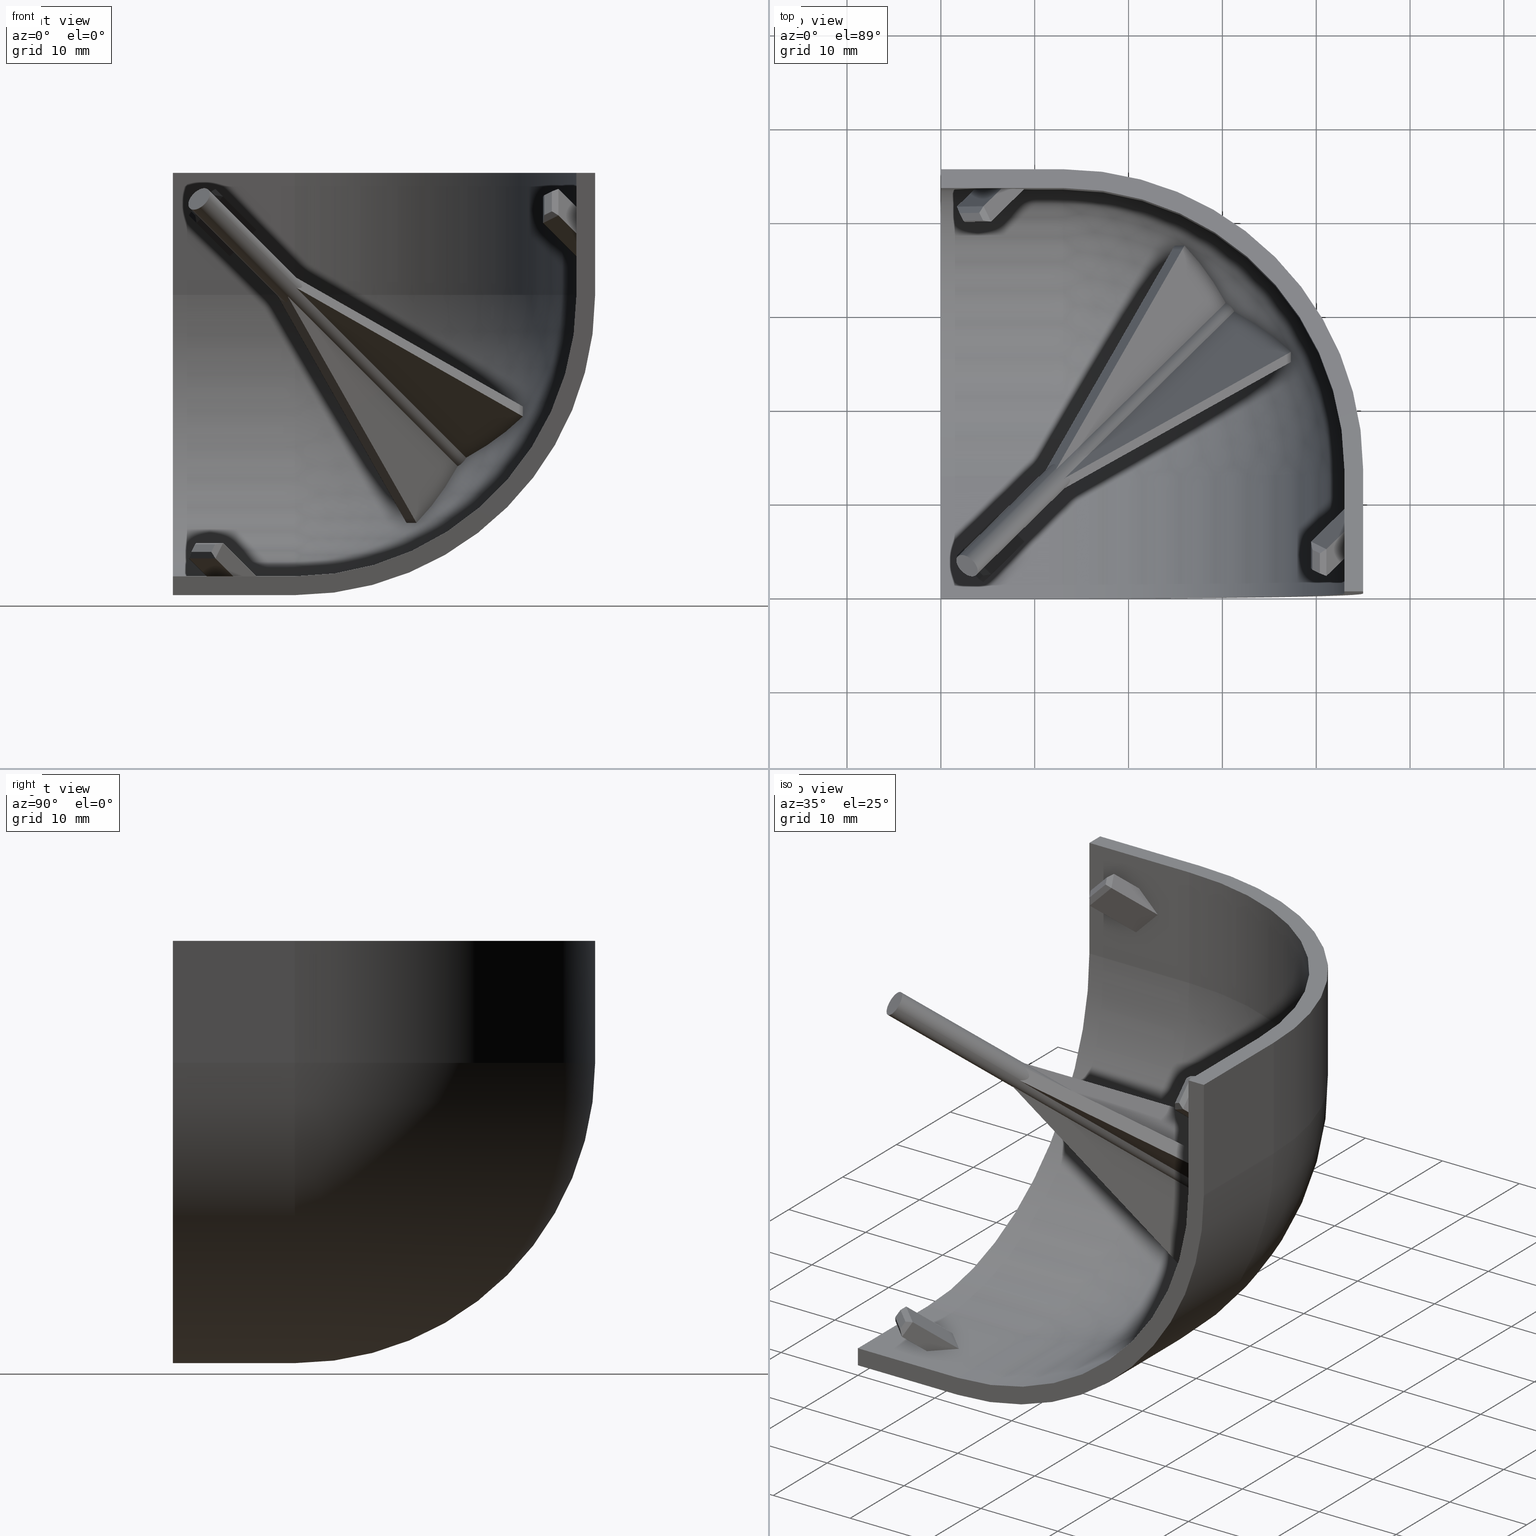
[diagram: canonical four-view strip — front | top / right | iso, engineering-drawing reading convention]
A machine part, canonical four-view strip (front | top / right | iso — engineering-drawing reading convention). The complete STEP part file that produces these views, byte-faithful:
ISO-10303-21;
HEADER;
/* Generated by software containing ST-Developer
 * from STEP Tools, Inc. (www.steptools.com) 
 */

FILE_DESCRIPTION(
/* description */ ('TAPPO TONDO GIUNTO A 3 VIE GRIGIO'),
/* implementation_level */ '2;1');

FILE_NAME(
/* name */ 
'Q:\\Catalogo\\2_Accessori Dierre\\Per Download Web e catalogo cartace
o\\CATALOGO ELEMENTI ASSEMBLAGGIO\\PAGINA 36\\CTPTG0000011.stp',
/* time_stamp */ '2018-11-05T14:04:34+01:00',
/* author */ ('fzagni'),
/* organization */ (''),
/* preprocessor_version */ 'ST-DEVELOPER v16.1',
/* originating_system */ 'Autodesk Inventor 2016',
/* authorisation */ '');

FILE_SCHEMA (('AUTOMOTIVE_DESIGN { 1 0 10303 214 3 1 1 }'));
ENDSEC;

DATA;
#10=MECHANICAL_DESIGN_GEOMETRIC_PRESENTATION_REPRESENTATION('',(#13),#1548);
#11=SHAPE_REPRESENTATION_RELATIONSHIP('SRR','None',#1557,#12);
#12=ADVANCED_BREP_SHAPE_REPRESENTATION('',(#14),#1547);
#13=STYLED_ITEM('',(#1566),#14);
#14=MANIFOLD_SOLID_BREP('Smusso1',#931);
#15=PLANE('',#954);
#16=PLANE('',#957);
#17=PLANE('',#961);
#18=PLANE('',#962);
#19=PLANE('',#965);
#20=PLANE('',#968);
#21=PLANE('',#969);
#22=PLANE('',#976);
#23=PLANE('',#977);
#24=PLANE('',#979);
#25=PLANE('',#980);
#26=PLANE('',#981);
#27=PLANE('',#982);
#28=PLANE('',#983);
#29=PLANE('',#984);
#30=PLANE('',#985);
#31=PLANE('',#986);
#32=PLANE('',#987);
#33=PLANE('',#988);
#34=PLANE('',#989);
#35=PLANE('',#990);
#36=PLANE('',#991);
#37=PLANE('',#992);
#38=PLANE('',#993);
#39=PLANE('',#994);
#40=PLANE('',#995);
#41=PLANE('',#996);
#42=PLANE('',#997);
#43=PLANE('',#998);
#44=PLANE('',#999);
#45=PLANE('',#1000);
#46=PLANE('',#1001);
#47=PLANE('',#1002);
#48=PLANE('',#1003);
#49=PLANE('',#1004);
#50=PLANE('',#1005);
#51=PLANE('',#1006);
#52=PLANE('',#1007);
#53=PLANE('',#1008);
#54=PLANE('',#1009);
#55=PLANE('',#1010);
#56=PLANE('',#1011);
#57=PLANE('',#1012);
#58=PLANE('',#1013);
#59=PLANE('',#1014);
#60=PLANE('',#1015);
#61=SPHERICAL_SURFACE('',#941,30.);
#62=SPHERICAL_SURFACE('',#970,32.);
#63=FACE_BOUND('',#325,.T.);
#64=FACE_BOUND('',#327,.T.);
#65=FACE_BOUND('',#334,.T.);
#66=FACE_BOUND('',#337,.T.);
#67=FACE_BOUND('',#345,.T.);
#68=LINE('',#1291,#167);
#69=LINE('',#1295,#168);
#70=LINE('',#1299,#169);
#71=LINE('',#1303,#170);
#72=LINE('',#1307,#171);
#73=LINE('',#1310,#172);
#74=LINE('',#1336,#173);
#75=LINE('',#1338,#174);
#76=LINE('',#1342,#175);
#77=LINE('',#1344,#176);
#78=LINE('',#1346,#177);
#79=LINE('',#1349,#178);
#80=LINE('',#1352,#179);
#81=LINE('',#1354,#180);
#82=LINE('',#1355,#181);
#83=LINE('',#1360,#182);
#84=LINE('',#1364,#183);
#85=LINE('',#1366,#184);
#86=LINE('',#1367,#185);
#87=LINE('',#1370,#186);
#88=LINE('',#1372,#187);
#89=LINE('',#1375,#188);
#90=LINE('',#1377,#189);
#91=LINE('',#1381,#190);
#92=LINE('',#1382,#191);
#93=LINE('',#1383,#192);
#94=LINE('',#1386,#193);
#95=LINE('',#1388,#194);
#96=LINE('',#1390,#195);
#97=LINE('',#1391,#196);
#98=LINE('',#1395,#197);
#99=LINE('',#1397,#198);
#100=LINE('',#1398,#199);
#101=LINE('',#1401,#200);
#102=LINE('',#1403,#201);
#103=LINE('',#1405,#202);
#104=LINE('',#1406,#203);
#105=LINE('',#1413,#204);
#106=LINE('',#1415,#205);
#107=LINE('',#1417,#206);
#108=LINE('',#1420,#207);
#109=LINE('',#1423,#208);
#110=LINE('',#1425,#209);
#111=LINE('',#1427,#210);
#112=LINE('',#1428,#211);
#113=LINE('',#1432,#212);
#114=LINE('',#1433,#213);
#115=LINE('',#1437,#214);
#116=LINE('',#1438,#215);
#117=LINE('',#1442,#216);
#118=LINE('',#1443,#217);
#119=LINE('',#1448,#218);
#120=LINE('',#1450,#219);
#121=LINE('',#1451,#220);
#122=LINE('',#1454,#221);
#123=LINE('',#1455,#222);
#124=LINE('',#1459,#223);
#125=LINE('',#1461,#224);
#126=LINE('',#1463,#225);
#127=LINE('',#1464,#226);
#128=LINE('',#1467,#227);
#129=LINE('',#1468,#228);
#130=LINE('',#1470,#229);
#131=LINE('',#1473,#230);
#132=LINE('',#1475,#231);
#133=LINE('',#1476,#232);
#134=LINE('',#1480,#233);
#135=LINE('',#1482,#234);
#136=LINE('',#1484,#235);
#137=LINE('',#1485,#236);
#138=LINE('',#1488,#237);
#139=LINE('',#1489,#238);
#140=LINE('',#1492,#239);
#141=LINE('',#1493,#240);
#142=LINE('',#1495,#241);
#143=LINE('',#1498,#242);
#144=LINE('',#1500,#243);
#145=LINE('',#1501,#244);
#146=LINE('',#1504,#245);
#147=LINE('',#1505,#246);
#148=LINE('',#1509,#247);
#149=LINE('',#1511,#248);
#150=LINE('',#1513,#249);
#151=LINE('',#1514,#250);
#152=LINE('',#1517,#251);
#153=LINE('',#1518,#252);
#154=LINE('',#1520,#253);
#155=LINE('',#1522,#254);
#156=LINE('',#1523,#255);
#157=LINE('',#1525,#256);
#158=LINE('',#1527,#257);
#159=LINE('',#1530,#258);
#160=LINE('',#1531,#259);
#161=LINE('',#1533,#260);
#162=LINE('',#1535,#261);
#163=LINE('',#1538,#262);
#164=LINE('',#1539,#263);
#165=LINE('',#1541,#264);
#166=LINE('',#1543,#265);
#167=VECTOR('',#1024,31.3487743008794);
#168=VECTOR('',#1027,31.3487742680335);
#169=VECTOR('',#1030,31.3487743130592);
#170=VECTOR('',#1033,31.348774313059);
#171=VECTOR('',#1036,31.3487743130594);
#172=VECTOR('',#1039,31.3487743130592);
#173=VECTOR('',#1068,2.);
#174=VECTOR('',#1069,13.);
#175=VECTOR('',#1072,12.9999999999998);
#176=VECTOR('',#1073,2.);
#177=VECTOR('',#1074,12.9999999999998);
#178=VECTOR('',#1077,13.);
#179=VECTOR('',#1080,12.9999999999998);
#180=VECTOR('',#1081,13.);
#181=VECTOR('',#1082,12.9999999999998);
#182=VECTOR('',#1087,13.0000000000001);
#183=VECTOR('',#1092,12.9999999999998);
#184=VECTOR('',#1093,13.);
#185=VECTOR('',#1094,12.9999999999998);
#186=VECTOR('',#1097,2.00000000000001);
#187=VECTOR('',#1098,13.);
#188=VECTOR('',#1101,13.);
#189=VECTOR('',#1102,13.);
#190=VECTOR('',#1107,12.9999999999998);
#191=VECTOR('',#1108,13.);
#192=VECTOR('',#1109,12.9999999999998);
#193=VECTOR('',#1110,3.46410161530466);
#194=VECTOR('',#1111,4.00000000002329);
#195=VECTOR('',#1112,3.46410161520599);
#196=VECTOR('',#1113,4.00000000002537);
#197=VECTOR('',#1118,13.);
#198=VECTOR('',#1121,12.9999999999998);
#199=VECTOR('',#1122,12.9999999999998);
#200=VECTOR('',#1123,3.99999999981728);
#201=VECTOR('',#1124,3.4641016150962);
#202=VECTOR('',#1125,3.99999999977504);
#203=VECTOR('',#1126,3.46410161502379);
#204=VECTOR('',#1137,12.9999999999998);
#205=VECTOR('',#1140,12.9999999999998);
#206=VECTOR('',#1143,12.9999999999999);
#207=VECTOR('',#1148,12.9999999999999);
#208=VECTOR('',#1149,3.46410161503992);
#209=VECTOR('',#1150,3.99999999971386);
#210=VECTOR('',#1151,3.46410161498843);
#211=VECTOR('',#1152,3.99999999972648);
#212=VECTOR('',#1159,30.9555790759951);
#213=VECTOR('',#1160,30.9555790302484);
#214=VECTOR('',#1167,30.9555790759953);
#215=VECTOR('',#1168,30.9555790759949);
#216=VECTOR('',#1175,30.9555790635604);
#217=VECTOR('',#1176,30.955579075995);
#218=VECTOR('',#1183,6.1399298416311);
#219=VECTOR('',#1184,1.99999999997232);
#220=VECTOR('',#1185,3.31150271684865);
#221=VECTOR('',#1188,6.13992984149428);
#222=VECTOR('',#1189,4.00000000011949);
#223=VECTOR('',#1192,3.0000000000996);
#224=VECTOR('',#1193,1.00000000000475);
#225=VECTOR('',#1194,3.00000000009959);
#226=VECTOR('',#1195,1.00000000000475);
#227=VECTOR('',#1198,3.99999999995302);
#228=VECTOR('',#1199,3.31150271679411);
#229=VECTOR('',#1202,2.00000000023374);
#230=VECTOR('',#1205,6.14205116169807);
#231=VECTOR('',#1206,3.9999999998547);
#232=VECTOR('',#1207,6.14205116164716);
#233=VECTOR('',#1210,2.99999999987222);
#234=VECTOR('',#1211,1.00000000011846);
#235=VECTOR('',#1212,2.99999999987222);
#236=VECTOR('',#1213,1.00000000011846);
#237=VECTOR('',#1216,1.99999999995872);
#238=VECTOR('',#1217,3.31362403689396);
#239=VECTOR('',#1220,3.31362403691132);
#240=VECTOR('',#1221,1.9999999999321);
#241=VECTOR('',#1224,4.00000000019829);
#242=VECTOR('',#1227,6.14205116203253);
#243=VECTOR('',#1228,4.00000000051261);
#244=VECTOR('',#1229,6.14205116195454);
#245=VECTOR('',#1232,3.31362403751265);
#246=VECTOR('',#1233,1.99999999963854);
#247=VECTOR('',#1236,1.00000000009004);
#248=VECTOR('',#1237,3.00000000021618);
#249=VECTOR('',#1238,1.00000000009004);
#250=VECTOR('',#1239,3.00000000021617);
#251=VECTOR('',#1242,2.00000000017998);
#252=VECTOR('',#1243,3.31362403732773);
#253=VECTOR('',#1246,4.00000000006022);
#254=VECTOR('',#1249,0.866025405023518);
#255=VECTOR('',#1250,0.866025403403457);
#256=VECTOR('',#1253,0.866025402259943);
#257=VECTOR('',#1256,0.866025404024427);
#258=VECTOR('',#1261,0.86602540262504);
#259=VECTOR('',#1262,0.866025403451196);
#260=VECTOR('',#1265,0.866025405104728);
#261=VECTOR('',#1268,0.866025404251112);
#262=VECTOR('',#1273,0.86602540286466);
#263=VECTOR('',#1274,0.866025404655954);
#264=VECTOR('',#1277,0.866025404650975);
#265=VECTOR('',#1280,0.866025402850209);
#266=ELLIPSE('',#935,5.09339588938347,1.40000009909664);
#267=ELLIPSE('',#937,5.09339619645517,1.40000015972746);
#268=ELLIPSE('',#939,5.09339540071324,1.40000000000002);
#269=FACE_OUTER_BOUND('',#324,.T.);
#270=FACE_OUTER_BOUND('',#326,.T.);
#271=FACE_OUTER_BOUND('',#328,.T.);
#272=FACE_OUTER_BOUND('',#329,.T.);
#273=FACE_OUTER_BOUND('',#330,.T.);
#274=FACE_OUTER_BOUND('',#331,.T.);
#275=FACE_OUTER_BOUND('',#332,.T.);
#276=FACE_OUTER_BOUND('',#333,.T.);
#277=FACE_OUTER_BOUND('',#335,.T.);
#278=FACE_OUTER_BOUND('',#336,.T.);
#279=FACE_OUTER_BOUND('',#338,.T.);
#280=FACE_OUTER_BOUND('',#339,.T.);
#281=FACE_OUTER_BOUND('',#340,.T.);
#282=FACE_OUTER_BOUND('',#341,.T.);
#283=FACE_OUTER_BOUND('',#342,.T.);
#284=FACE_OUTER_BOUND('',#343,.T.);
#285=FACE_OUTER_BOUND('',#344,.T.);
#286=FACE_OUTER_BOUND('',#346,.T.);
#287=FACE_OUTER_BOUND('',#347,.T.);
#288=FACE_OUTER_BOUND('',#348,.T.);
#289=FACE_OUTER_BOUND('',#349,.T.);
#290=FACE_OUTER_BOUND('',#350,.T.);
#291=FACE_OUTER_BOUND('',#351,.T.);
#292=FACE_OUTER_BOUND('',#352,.T.);
#293=FACE_OUTER_BOUND('',#353,.T.);
#294=FACE_OUTER_BOUND('',#354,.T.);
#295=FACE_OUTER_BOUND('',#355,.T.);
#296=FACE_OUTER_BOUND('',#356,.T.);
#297=FACE_OUTER_BOUND('',#357,.T.);
#298=FACE_OUTER_BOUND('',#358,.T.);
#299=FACE_OUTER_BOUND('',#359,.T.);
#300=FACE_OUTER_BOUND('',#360,.T.);
#301=FACE_OUTER_BOUND('',#361,.T.);
#302=FACE_OUTER_BOUND('',#362,.T.);
#303=FACE_OUTER_BOUND('',#363,.T.);
#304=FACE_OUTER_BOUND('',#364,.T.);
#305=FACE_OUTER_BOUND('',#365,.T.);
#306=FACE_OUTER_BOUND('',#366,.T.);
#307=FACE_OUTER_BOUND('',#367,.T.);
#308=FACE_OUTER_BOUND('',#368,.T.);
#309=FACE_OUTER_BOUND('',#369,.T.);
#310=FACE_OUTER_BOUND('',#370,.T.);
#311=FACE_OUTER_BOUND('',#371,.T.);
#312=FACE_OUTER_BOUND('',#372,.T.);
#313=FACE_OUTER_BOUND('',#373,.T.);
#314=FACE_OUTER_BOUND('',#374,.T.);
#315=FACE_OUTER_BOUND('',#375,.T.);
#316=FACE_OUTER_BOUND('',#376,.T.);
#317=FACE_OUTER_BOUND('',#377,.T.);
#318=FACE_OUTER_BOUND('',#378,.T.);
#319=FACE_OUTER_BOUND('',#379,.T.);
#320=FACE_OUTER_BOUND('',#380,.T.);
#321=FACE_OUTER_BOUND('',#381,.T.);
#322=FACE_OUTER_BOUND('',#382,.T.);
#323=FACE_OUTER_BOUND('',#383,.T.);
#324=EDGE_LOOP('',(#615));
#325=EDGE_LOOP('',(#616,#617,#618,#619,#620,#621,#622,#623,#624,#625,#626,
#627));
#326=EDGE_LOOP('',(#628,#629,#630));
#327=EDGE_LOOP('',(#631,#632,#633,#634,#635,#636,#637,#638,#639,#640,#641,
#642));
#328=EDGE_LOOP('',(#643,#644,#645,#646,#647,#648,#649,#650));
#329=EDGE_LOOP('',(#651,#652,#653,#654));
#330=EDGE_LOOP('',(#655,#656,#657,#658));
#331=EDGE_LOOP('',(#659,#660,#661,#662));
#332=EDGE_LOOP('',(#663,#664,#665,#666,#667,#668,#669,#670));
#333=EDGE_LOOP('',(#671,#672,#673,#674));
#334=EDGE_LOOP('',(#675,#676,#677,#678));
#335=EDGE_LOOP('',(#679,#680,#681,#682));
#336=EDGE_LOOP('',(#683,#684,#685,#686));
#337=EDGE_LOOP('',(#687,#688,#689,#690));
#338=EDGE_LOOP('',(#691,#692,#693,#694,#695,#696,#697,#698));
#339=EDGE_LOOP('',(#699,#700,#701));
#340=EDGE_LOOP('',(#702,#703,#704,#705));
#341=EDGE_LOOP('',(#706,#707,#708,#709));
#342=EDGE_LOOP('',(#710,#711,#712,#713));
#343=EDGE_LOOP('',(#714,#715,#716,#717));
#344=EDGE_LOOP('',(#718,#719,#720,#721));
#345=EDGE_LOOP('',(#722,#723,#724,#725));
#346=EDGE_LOOP('',(#726,#727,#728,#729));
#347=EDGE_LOOP('',(#730));
#348=EDGE_LOOP('',(#731,#732,#733,#734));
#349=EDGE_LOOP('',(#735,#736,#737));
#350=EDGE_LOOP('',(#738,#739,#740));
#351=EDGE_LOOP('',(#741,#742,#743,#744));
#352=EDGE_LOOP('',(#745,#746,#747));
#353=EDGE_LOOP('',(#748,#749,#750));
#354=EDGE_LOOP('',(#751,#752,#753,#754));
#355=EDGE_LOOP('',(#755,#756,#757));
#356=EDGE_LOOP('',(#758,#759,#760));
#357=EDGE_LOOP('',(#761,#762,#763,#764));
#358=EDGE_LOOP('',(#765,#766,#767,#768));
#359=EDGE_LOOP('',(#769,#770,#771,#772));
#360=EDGE_LOOP('',(#773,#774,#775,#776));
#361=EDGE_LOOP('',(#777,#778,#779,#780));
#362=EDGE_LOOP('',(#781,#782,#783,#784));
#363=EDGE_LOOP('',(#785,#786,#787,#788));
#364=EDGE_LOOP('',(#789,#790,#791,#792));
#365=EDGE_LOOP('',(#793,#794,#795,#796));
#366=EDGE_LOOP('',(#797,#798,#799,#800));
#367=EDGE_LOOP('',(#801,#802,#803,#804));
#368=EDGE_LOOP('',(#805,#806,#807,#808));
#369=EDGE_LOOP('',(#809,#810,#811,#812));
#370=EDGE_LOOP('',(#813,#814,#815,#816));
#371=EDGE_LOOP('',(#817,#818,#819,#820));
#372=EDGE_LOOP('',(#821,#822,#823,#824));
#373=EDGE_LOOP('',(#825,#826,#827,#828));
#374=EDGE_LOOP('',(#829,#830,#831,#832));
#375=EDGE_LOOP('',(#833,#834,#835,#836));
#376=EDGE_LOOP('',(#837,#838,#839,#840));
#377=EDGE_LOOP('',(#841,#842,#843,#844));
#378=EDGE_LOOP('',(#845,#846,#847,#848));
#379=EDGE_LOOP('',(#849,#850,#851,#852));
#380=EDGE_LOOP('',(#853,#854,#855,#856));
#381=EDGE_LOOP('',(#857,#858,#859,#860));
#382=EDGE_LOOP('',(#861,#862,#863,#864));
#383=EDGE_LOOP('',(#865,#866,#867,#868));
#384=CIRCLE('',#934,1.4);
#385=CIRCLE('',#936,1.4);
#386=CIRCLE('',#938,1.4);
#387=CIRCLE('',#940,1.4);
#388=CIRCLE('',#942,30.);
#389=CIRCLE('',#943,30.);
#390=CIRCLE('',#944,30.);
#391=CIRCLE('',#945,29.9616539883931);
#392=CIRCLE('',#946,29.9906235346983);
#393=CIRCLE('',#947,29.9906235346983);
#394=CIRCLE('',#948,29.9616539883931);
#395=CIRCLE('',#949,29.9906235346983);
#396=CIRCLE('',#950,29.9906235346983);
#397=CIRCLE('',#951,29.9616539883931);
#398=CIRCLE('',#952,29.9906235346983);
#399=CIRCLE('',#953,29.9906235346983);
#400=CIRCLE('',#955,32.);
#401=CIRCLE('',#956,30.);
#402=CIRCLE('',#959,32.);
#403=CIRCLE('',#960,32.);
#404=CIRCLE('',#963,29.9999999999999);
#405=CIRCLE('',#964,31.9999999999999);
#406=CIRCLE('',#967,30.);
#407=CIRCLE('',#971,32.);
#408=CIRCLE('',#972,32.);
#409=VERTEX_POINT('',#1285);
#410=VERTEX_POINT('',#1287);
#411=VERTEX_POINT('',#1288);
#412=VERTEX_POINT('',#1290);
#413=VERTEX_POINT('',#1292);
#414=VERTEX_POINT('',#1294);
#415=VERTEX_POINT('',#1296);
#416=VERTEX_POINT('',#1298);
#417=VERTEX_POINT('',#1300);
#418=VERTEX_POINT('',#1302);
#419=VERTEX_POINT('',#1304);
#420=VERTEX_POINT('',#1306);
#421=VERTEX_POINT('',#1308);
#422=VERTEX_POINT('',#1312);
#423=VERTEX_POINT('',#1313);
#424=VERTEX_POINT('',#1315);
#425=VERTEX_POINT('',#1318);
#426=VERTEX_POINT('',#1319);
#427=VERTEX_POINT('',#1322);
#428=VERTEX_POINT('',#1324);
#429=VERTEX_POINT('',#1327);
#430=VERTEX_POINT('',#1329);
#431=VERTEX_POINT('',#1334);
#432=VERTEX_POINT('',#1335);
#433=VERTEX_POINT('',#1337);
#434=VERTEX_POINT('',#1339);
#435=VERTEX_POINT('',#1341);
#436=VERTEX_POINT('',#1343);
#437=VERTEX_POINT('',#1345);
#438=VERTEX_POINT('',#1347);
#439=VERTEX_POINT('',#1351);
#440=VERTEX_POINT('',#1353);
#441=VERTEX_POINT('',#1357);
#442=VERTEX_POINT('',#1359);
#443=VERTEX_POINT('',#1363);
#444=VERTEX_POINT('',#1365);
#445=VERTEX_POINT('',#1369);
#446=VERTEX_POINT('',#1371);
#447=VERTEX_POINT('',#1373);
#448=VERTEX_POINT('',#1376);
#449=VERTEX_POINT('',#1380);
#450=VERTEX_POINT('',#1384);
#451=VERTEX_POINT('',#1385);
#452=VERTEX_POINT('',#1387);
#453=VERTEX_POINT('',#1389);
#454=VERTEX_POINT('',#1393);
#455=VERTEX_POINT('',#1399);
#456=VERTEX_POINT('',#1400);
#457=VERTEX_POINT('',#1402);
#458=VERTEX_POINT('',#1404);
#459=VERTEX_POINT('',#1409);
#460=VERTEX_POINT('',#1421);
#461=VERTEX_POINT('',#1422);
#462=VERTEX_POINT('',#1424);
#463=VERTEX_POINT('',#1426);
#464=VERTEX_POINT('',#1447);
#465=VERTEX_POINT('',#1449);
#466=VERTEX_POINT('',#1453);
#467=VERTEX_POINT('',#1457);
#468=VERTEX_POINT('',#1458);
#469=VERTEX_POINT('',#1460);
#470=VERTEX_POINT('',#1462);
#471=VERTEX_POINT('',#1466);
#472=VERTEX_POINT('',#1472);
#473=VERTEX_POINT('',#1474);
#474=VERTEX_POINT('',#1478);
#475=VERTEX_POINT('',#1479);
#476=VERTEX_POINT('',#1481);
#477=VERTEX_POINT('',#1483);
#478=VERTEX_POINT('',#1487);
#479=VERTEX_POINT('',#1491);
#480=VERTEX_POINT('',#1497);
#481=VERTEX_POINT('',#1499);
#482=VERTEX_POINT('',#1503);
#483=VERTEX_POINT('',#1507);
#484=VERTEX_POINT('',#1508);
#485=VERTEX_POINT('',#1510);
#486=VERTEX_POINT('',#1512);
#487=VERTEX_POINT('',#1516);
#488=EDGE_CURVE('',#409,#409,#384,.T.);
#489=EDGE_CURVE('',#410,#411,#266,.T.);
#490=EDGE_CURVE('',#410,#412,#68,.T.);
#491=EDGE_CURVE('',#413,#412,#385,.T.);
#492=EDGE_CURVE('',#414,#413,#69,.T.);
#493=EDGE_CURVE('',#415,#414,#267,.T.);
#494=EDGE_CURVE('',#415,#416,#70,.T.);
#495=EDGE_CURVE('',#417,#416,#386,.T.);
#496=EDGE_CURVE('',#418,#417,#71,.T.);
#497=EDGE_CURVE('',#419,#418,#268,.T.);
#498=EDGE_CURVE('',#419,#420,#72,.T.);
#499=EDGE_CURVE('',#421,#420,#387,.T.);
#500=EDGE_CURVE('',#411,#421,#73,.T.);
#501=EDGE_CURVE('',#422,#423,#388,.T.);
#502=EDGE_CURVE('',#424,#422,#389,.T.);
#503=EDGE_CURVE('',#424,#423,#390,.T.);
#504=EDGE_CURVE('',#425,#426,#391,.T.);
#505=EDGE_CURVE('',#426,#421,#392,.T.);
#506=EDGE_CURVE('',#427,#420,#393,.T.);
#507=EDGE_CURVE('',#427,#428,#394,.T.);
#508=EDGE_CURVE('',#428,#417,#395,.T.);
#509=EDGE_CURVE('',#429,#416,#396,.T.);
#510=EDGE_CURVE('',#429,#430,#397,.T.);
#511=EDGE_CURVE('',#430,#413,#398,.T.);
#512=EDGE_CURVE('',#425,#412,#399,.T.);
#513=EDGE_CURVE('',#431,#432,#74,.T.);
#514=EDGE_CURVE('',#433,#431,#75,.T.);
#515=EDGE_CURVE('',#433,#434,#400,.T.);
#516=EDGE_CURVE('',#434,#435,#76,.T.);
#517=EDGE_CURVE('',#435,#436,#77,.T.);
#518=EDGE_CURVE('',#436,#437,#78,.T.);
#519=EDGE_CURVE('',#437,#438,#401,.T.);
#520=EDGE_CURVE('',#438,#432,#79,.T.);
#521=EDGE_CURVE('',#439,#431,#80,.T.);
#522=EDGE_CURVE('',#440,#439,#81,.T.);
#523=EDGE_CURVE('',#440,#433,#82,.T.);
#524=EDGE_CURVE('',#441,#439,#402,.T.);
#525=EDGE_CURVE('',#442,#441,#83,.T.);
#526=EDGE_CURVE('',#442,#440,#403,.T.);
#527=EDGE_CURVE('',#443,#441,#84,.T.);
#528=EDGE_CURVE('',#444,#443,#85,.T.);
#529=EDGE_CURVE('',#444,#442,#86,.T.);
#530=EDGE_CURVE('',#445,#443,#87,.T.);
#531=EDGE_CURVE('',#446,#445,#88,.T.);
#532=EDGE_CURVE('',#447,#446,#404,.T.);
#533=EDGE_CURVE('',#436,#447,#89,.T.);
#534=EDGE_CURVE('',#435,#448,#90,.T.);
#535=EDGE_CURVE('',#448,#444,#405,.T.);
#536=EDGE_CURVE('',#449,#445,#91,.T.);
#537=EDGE_CURVE('',#423,#449,#92,.T.);
#538=EDGE_CURVE('',#423,#446,#93,.T.);
#539=EDGE_CURVE('',#450,#451,#94,.T.);
#540=EDGE_CURVE('',#451,#452,#95,.T.);
#541=EDGE_CURVE('',#452,#453,#96,.T.);
#542=EDGE_CURVE('',#453,#450,#97,.T.);
#543=EDGE_CURVE('',#454,#449,#406,.T.);
#544=EDGE_CURVE('',#422,#454,#98,.T.);
#545=EDGE_CURVE('',#432,#454,#99,.T.);
#546=EDGE_CURVE('',#438,#422,#100,.T.);
#547=EDGE_CURVE('',#455,#456,#101,.T.);
#548=EDGE_CURVE('',#456,#457,#102,.T.);
#549=EDGE_CURVE('',#457,#458,#103,.T.);
#550=EDGE_CURVE('',#458,#455,#104,.T.);
#551=EDGE_CURVE('',#459,#442,#407,.T.);
#552=EDGE_CURVE('',#440,#459,#408,.T.);
#553=EDGE_CURVE('',#459,#448,#105,.T.);
#554=EDGE_CURVE('',#447,#424,#106,.T.);
#555=EDGE_CURVE('',#434,#459,#107,.T.);
#556=EDGE_CURVE('',#437,#424,#108,.T.);
#557=EDGE_CURVE('',#460,#461,#109,.T.);
#558=EDGE_CURVE('',#462,#460,#110,.T.);
#559=EDGE_CURVE('',#463,#462,#111,.T.);
#560=EDGE_CURVE('',#461,#463,#112,.T.);
#561=EDGE_CURVE('',#415,#429,#113,.T.);
#562=EDGE_CURVE('',#414,#430,#114,.T.);
#563=EDGE_CURVE('',#419,#427,#115,.T.);
#564=EDGE_CURVE('',#418,#428,#116,.T.);
#565=EDGE_CURVE('',#410,#425,#117,.T.);
#566=EDGE_CURVE('',#411,#426,#118,.T.);
#567=EDGE_CURVE('',#450,#464,#119,.T.);
#568=EDGE_CURVE('',#464,#465,#120,.T.);
#569=EDGE_CURVE('',#451,#465,#121,.T.);
#570=EDGE_CURVE('',#453,#466,#122,.T.);
#571=EDGE_CURVE('',#466,#464,#123,.T.);
#572=EDGE_CURVE('',#467,#468,#124,.T.);
#573=EDGE_CURVE('',#468,#469,#125,.T.);
#574=EDGE_CURVE('',#469,#470,#126,.T.);
#575=EDGE_CURVE('',#470,#467,#127,.T.);
#576=EDGE_CURVE('',#465,#471,#128,.T.);
#577=EDGE_CURVE('',#452,#471,#129,.T.);
#578=EDGE_CURVE('',#471,#466,#130,.T.);
#579=EDGE_CURVE('',#460,#472,#131,.T.);
#580=EDGE_CURVE('',#472,#473,#132,.T.);
#581=EDGE_CURVE('',#462,#473,#133,.T.);
#582=EDGE_CURVE('',#474,#475,#134,.T.);
#583=EDGE_CURVE('',#475,#476,#135,.T.);
#584=EDGE_CURVE('',#476,#477,#136,.T.);
#585=EDGE_CURVE('',#477,#474,#137,.T.);
#586=EDGE_CURVE('',#473,#478,#138,.T.);
#587=EDGE_CURVE('',#463,#478,#139,.T.);
#588=EDGE_CURVE('',#461,#479,#140,.T.);
#589=EDGE_CURVE('',#479,#472,#141,.T.);
#590=EDGE_CURVE('',#478,#479,#142,.T.);
#591=EDGE_CURVE('',#455,#480,#143,.T.);
#592=EDGE_CURVE('',#480,#481,#144,.T.);
#593=EDGE_CURVE('',#456,#481,#145,.T.);
#594=EDGE_CURVE('',#458,#482,#146,.T.);
#595=EDGE_CURVE('',#482,#480,#147,.T.);
#596=EDGE_CURVE('',#483,#484,#148,.T.);
#597=EDGE_CURVE('',#484,#485,#149,.T.);
#598=EDGE_CURVE('',#485,#486,#150,.T.);
#599=EDGE_CURVE('',#486,#483,#151,.T.);
#600=EDGE_CURVE('',#481,#487,#152,.T.);
#601=EDGE_CURVE('',#457,#487,#153,.T.);
#602=EDGE_CURVE('',#487,#482,#154,.T.);
#603=EDGE_CURVE('',#481,#486,#155,.T.);
#604=EDGE_CURVE('',#483,#480,#156,.T.);
#605=EDGE_CURVE('',#484,#482,#157,.T.);
#606=EDGE_CURVE('',#487,#485,#158,.T.);
#607=EDGE_CURVE('',#465,#470,#159,.T.);
#608=EDGE_CURVE('',#467,#464,#160,.T.);
#609=EDGE_CURVE('',#468,#466,#161,.T.);
#610=EDGE_CURVE('',#471,#469,#162,.T.);
#611=EDGE_CURVE('',#472,#477,#163,.T.);
#612=EDGE_CURVE('',#474,#479,#164,.T.);
#613=EDGE_CURVE('',#475,#478,#165,.T.);
#614=EDGE_CURVE('',#473,#476,#166,.T.);
#615=ORIENTED_EDGE('',*,*,#488,.T.);
#616=ORIENTED_EDGE('',*,*,#489,.F.);
#617=ORIENTED_EDGE('',*,*,#490,.T.);
#618=ORIENTED_EDGE('',*,*,#491,.F.);
#619=ORIENTED_EDGE('',*,*,#492,.F.);
#620=ORIENTED_EDGE('',*,*,#493,.F.);
#621=ORIENTED_EDGE('',*,*,#494,.T.);
#622=ORIENTED_EDGE('',*,*,#495,.F.);
#623=ORIENTED_EDGE('',*,*,#496,.F.);
#624=ORIENTED_EDGE('',*,*,#497,.F.);
#625=ORIENTED_EDGE('',*,*,#498,.T.);
#626=ORIENTED_EDGE('',*,*,#499,.F.);
#627=ORIENTED_EDGE('',*,*,#500,.F.);
#628=ORIENTED_EDGE('',*,*,#501,.F.);
#629=ORIENTED_EDGE('',*,*,#502,.F.);
#630=ORIENTED_EDGE('',*,*,#503,.T.);
#631=ORIENTED_EDGE('',*,*,#504,.T.);
#632=ORIENTED_EDGE('',*,*,#505,.T.);
#633=ORIENTED_EDGE('',*,*,#499,.T.);
#634=ORIENTED_EDGE('',*,*,#506,.F.);
#635=ORIENTED_EDGE('',*,*,#507,.T.);
#636=ORIENTED_EDGE('',*,*,#508,.T.);
#637=ORIENTED_EDGE('',*,*,#495,.T.);
#638=ORIENTED_EDGE('',*,*,#509,.F.);
#639=ORIENTED_EDGE('',*,*,#510,.T.);
#640=ORIENTED_EDGE('',*,*,#511,.T.);
#641=ORIENTED_EDGE('',*,*,#491,.T.);
#642=ORIENTED_EDGE('',*,*,#512,.F.);
#643=ORIENTED_EDGE('',*,*,#513,.F.);
#644=ORIENTED_EDGE('',*,*,#514,.F.);
#645=ORIENTED_EDGE('',*,*,#515,.T.);
#646=ORIENTED_EDGE('',*,*,#516,.T.);
#647=ORIENTED_EDGE('',*,*,#517,.T.);
#648=ORIENTED_EDGE('',*,*,#518,.T.);
#649=ORIENTED_EDGE('',*,*,#519,.T.);
#650=ORIENTED_EDGE('',*,*,#520,.T.);
#651=ORIENTED_EDGE('',*,*,#521,.F.);
#652=ORIENTED_EDGE('',*,*,#522,.F.);
#653=ORIENTED_EDGE('',*,*,#523,.T.);
#654=ORIENTED_EDGE('',*,*,#514,.T.);
#655=ORIENTED_EDGE('',*,*,#524,.F.);
#656=ORIENTED_EDGE('',*,*,#525,.F.);
#657=ORIENTED_EDGE('',*,*,#526,.T.);
#658=ORIENTED_EDGE('',*,*,#522,.T.);
#659=ORIENTED_EDGE('',*,*,#527,.F.);
#660=ORIENTED_EDGE('',*,*,#528,.F.);
#661=ORIENTED_EDGE('',*,*,#529,.T.);
#662=ORIENTED_EDGE('',*,*,#525,.T.);
#663=ORIENTED_EDGE('',*,*,#530,.F.);
#664=ORIENTED_EDGE('',*,*,#531,.F.);
#665=ORIENTED_EDGE('',*,*,#532,.F.);
#666=ORIENTED_EDGE('',*,*,#533,.F.);
#667=ORIENTED_EDGE('',*,*,#517,.F.);
#668=ORIENTED_EDGE('',*,*,#534,.T.);
#669=ORIENTED_EDGE('',*,*,#535,.T.);
#670=ORIENTED_EDGE('',*,*,#528,.T.);
#671=ORIENTED_EDGE('',*,*,#536,.F.);
#672=ORIENTED_EDGE('',*,*,#537,.F.);
#673=ORIENTED_EDGE('',*,*,#538,.T.);
#674=ORIENTED_EDGE('',*,*,#531,.T.);
#675=ORIENTED_EDGE('',*,*,#539,.T.);
#676=ORIENTED_EDGE('',*,*,#540,.T.);
#677=ORIENTED_EDGE('',*,*,#541,.T.);
#678=ORIENTED_EDGE('',*,*,#542,.T.);
#679=ORIENTED_EDGE('',*,*,#543,.F.);
#680=ORIENTED_EDGE('',*,*,#544,.F.);
#681=ORIENTED_EDGE('',*,*,#501,.T.);
#682=ORIENTED_EDGE('',*,*,#537,.T.);
#683=ORIENTED_EDGE('',*,*,#545,.F.);
#684=ORIENTED_EDGE('',*,*,#520,.F.);
#685=ORIENTED_EDGE('',*,*,#546,.T.);
#686=ORIENTED_EDGE('',*,*,#544,.T.);
#687=ORIENTED_EDGE('',*,*,#547,.T.);
#688=ORIENTED_EDGE('',*,*,#548,.T.);
#689=ORIENTED_EDGE('',*,*,#549,.T.);
#690=ORIENTED_EDGE('',*,*,#550,.T.);
#691=ORIENTED_EDGE('',*,*,#513,.T.);
#692=ORIENTED_EDGE('',*,*,#545,.T.);
#693=ORIENTED_EDGE('',*,*,#543,.T.);
#694=ORIENTED_EDGE('',*,*,#536,.T.);
#695=ORIENTED_EDGE('',*,*,#530,.T.);
#696=ORIENTED_EDGE('',*,*,#527,.T.);
#697=ORIENTED_EDGE('',*,*,#524,.T.);
#698=ORIENTED_EDGE('',*,*,#521,.T.);
#699=ORIENTED_EDGE('',*,*,#551,.F.);
#700=ORIENTED_EDGE('',*,*,#552,.F.);
#701=ORIENTED_EDGE('',*,*,#526,.F.);
#702=ORIENTED_EDGE('',*,*,#535,.F.);
#703=ORIENTED_EDGE('',*,*,#553,.F.);
#704=ORIENTED_EDGE('',*,*,#551,.T.);
#705=ORIENTED_EDGE('',*,*,#529,.F.);
#706=ORIENTED_EDGE('',*,*,#503,.F.);
#707=ORIENTED_EDGE('',*,*,#554,.F.);
#708=ORIENTED_EDGE('',*,*,#532,.T.);
#709=ORIENTED_EDGE('',*,*,#538,.F.);
#710=ORIENTED_EDGE('',*,*,#515,.F.);
#711=ORIENTED_EDGE('',*,*,#523,.F.);
#712=ORIENTED_EDGE('',*,*,#552,.T.);
#713=ORIENTED_EDGE('',*,*,#555,.F.);
#714=ORIENTED_EDGE('',*,*,#516,.F.);
#715=ORIENTED_EDGE('',*,*,#555,.T.);
#716=ORIENTED_EDGE('',*,*,#553,.T.);
#717=ORIENTED_EDGE('',*,*,#534,.F.);
#718=ORIENTED_EDGE('',*,*,#518,.F.);
#719=ORIENTED_EDGE('',*,*,#533,.T.);
#720=ORIENTED_EDGE('',*,*,#554,.T.);
#721=ORIENTED_EDGE('',*,*,#556,.F.);
#722=ORIENTED_EDGE('',*,*,#557,.F.);
#723=ORIENTED_EDGE('',*,*,#558,.F.);
#724=ORIENTED_EDGE('',*,*,#559,.F.);
#725=ORIENTED_EDGE('',*,*,#560,.F.);
#726=ORIENTED_EDGE('',*,*,#519,.F.);
#727=ORIENTED_EDGE('',*,*,#556,.T.);
#728=ORIENTED_EDGE('',*,*,#502,.T.);
#729=ORIENTED_EDGE('',*,*,#546,.F.);
#730=ORIENTED_EDGE('',*,*,#488,.F.);
#731=ORIENTED_EDGE('',*,*,#510,.F.);
#732=ORIENTED_EDGE('',*,*,#561,.F.);
#733=ORIENTED_EDGE('',*,*,#493,.T.);
#734=ORIENTED_EDGE('',*,*,#562,.T.);
#735=ORIENTED_EDGE('',*,*,#511,.F.);
#736=ORIENTED_EDGE('',*,*,#562,.F.);
#737=ORIENTED_EDGE('',*,*,#492,.T.);
#738=ORIENTED_EDGE('',*,*,#561,.T.);
#739=ORIENTED_EDGE('',*,*,#509,.T.);
#740=ORIENTED_EDGE('',*,*,#494,.F.);
#741=ORIENTED_EDGE('',*,*,#507,.F.);
#742=ORIENTED_EDGE('',*,*,#563,.F.);
#743=ORIENTED_EDGE('',*,*,#497,.T.);
#744=ORIENTED_EDGE('',*,*,#564,.T.);
#745=ORIENTED_EDGE('',*,*,#508,.F.);
#746=ORIENTED_EDGE('',*,*,#564,.F.);
#747=ORIENTED_EDGE('',*,*,#496,.T.);
#748=ORIENTED_EDGE('',*,*,#563,.T.);
#749=ORIENTED_EDGE('',*,*,#506,.T.);
#750=ORIENTED_EDGE('',*,*,#498,.F.);
#751=ORIENTED_EDGE('',*,*,#504,.F.);
#752=ORIENTED_EDGE('',*,*,#565,.F.);
#753=ORIENTED_EDGE('',*,*,#489,.T.);
#754=ORIENTED_EDGE('',*,*,#566,.T.);
#755=ORIENTED_EDGE('',*,*,#505,.F.);
#756=ORIENTED_EDGE('',*,*,#566,.F.);
#757=ORIENTED_EDGE('',*,*,#500,.T.);
#758=ORIENTED_EDGE('',*,*,#565,.T.);
#759=ORIENTED_EDGE('',*,*,#512,.T.);
#760=ORIENTED_EDGE('',*,*,#490,.F.);
#761=ORIENTED_EDGE('',*,*,#567,.T.);
#762=ORIENTED_EDGE('',*,*,#568,.T.);
#763=ORIENTED_EDGE('',*,*,#569,.F.);
#764=ORIENTED_EDGE('',*,*,#539,.F.);
#765=ORIENTED_EDGE('',*,*,#570,.T.);
#766=ORIENTED_EDGE('',*,*,#571,.T.);
#767=ORIENTED_EDGE('',*,*,#567,.F.);
#768=ORIENTED_EDGE('',*,*,#542,.F.);
#769=ORIENTED_EDGE('',*,*,#572,.T.);
#770=ORIENTED_EDGE('',*,*,#573,.T.);
#771=ORIENTED_EDGE('',*,*,#574,.T.);
#772=ORIENTED_EDGE('',*,*,#575,.T.);
#773=ORIENTED_EDGE('',*,*,#569,.T.);
#774=ORIENTED_EDGE('',*,*,#576,.T.);
#775=ORIENTED_EDGE('',*,*,#577,.F.);
#776=ORIENTED_EDGE('',*,*,#540,.F.);
#777=ORIENTED_EDGE('',*,*,#577,.T.);
#778=ORIENTED_EDGE('',*,*,#578,.T.);
#779=ORIENTED_EDGE('',*,*,#570,.F.);
#780=ORIENTED_EDGE('',*,*,#541,.F.);
#781=ORIENTED_EDGE('',*,*,#579,.T.);
#782=ORIENTED_EDGE('',*,*,#580,.T.);
#783=ORIENTED_EDGE('',*,*,#581,.F.);
#784=ORIENTED_EDGE('',*,*,#558,.T.);
#785=ORIENTED_EDGE('',*,*,#582,.T.);
#786=ORIENTED_EDGE('',*,*,#583,.T.);
#787=ORIENTED_EDGE('',*,*,#584,.T.);
#788=ORIENTED_EDGE('',*,*,#585,.T.);
#789=ORIENTED_EDGE('',*,*,#581,.T.);
#790=ORIENTED_EDGE('',*,*,#586,.T.);
#791=ORIENTED_EDGE('',*,*,#587,.F.);
#792=ORIENTED_EDGE('',*,*,#559,.T.);
#793=ORIENTED_EDGE('',*,*,#588,.T.);
#794=ORIENTED_EDGE('',*,*,#589,.T.);
#795=ORIENTED_EDGE('',*,*,#579,.F.);
#796=ORIENTED_EDGE('',*,*,#557,.T.);
#797=ORIENTED_EDGE('',*,*,#587,.T.);
#798=ORIENTED_EDGE('',*,*,#590,.T.);
#799=ORIENTED_EDGE('',*,*,#588,.F.);
#800=ORIENTED_EDGE('',*,*,#560,.T.);
#801=ORIENTED_EDGE('',*,*,#591,.T.);
#802=ORIENTED_EDGE('',*,*,#592,.T.);
#803=ORIENTED_EDGE('',*,*,#593,.F.);
#804=ORIENTED_EDGE('',*,*,#547,.F.);
#805=ORIENTED_EDGE('',*,*,#594,.T.);
#806=ORIENTED_EDGE('',*,*,#595,.T.);
#807=ORIENTED_EDGE('',*,*,#591,.F.);
#808=ORIENTED_EDGE('',*,*,#550,.F.);
#809=ORIENTED_EDGE('',*,*,#596,.T.);
#810=ORIENTED_EDGE('',*,*,#597,.T.);
#811=ORIENTED_EDGE('',*,*,#598,.T.);
#812=ORIENTED_EDGE('',*,*,#599,.T.);
#813=ORIENTED_EDGE('',*,*,#593,.T.);
#814=ORIENTED_EDGE('',*,*,#600,.T.);
#815=ORIENTED_EDGE('',*,*,#601,.F.);
#816=ORIENTED_EDGE('',*,*,#548,.F.);
#817=ORIENTED_EDGE('',*,*,#601,.T.);
#818=ORIENTED_EDGE('',*,*,#602,.T.);
#819=ORIENTED_EDGE('',*,*,#594,.F.);
#820=ORIENTED_EDGE('',*,*,#549,.F.);
#821=ORIENTED_EDGE('',*,*,#603,.F.);
#822=ORIENTED_EDGE('',*,*,#592,.F.);
#823=ORIENTED_EDGE('',*,*,#604,.F.);
#824=ORIENTED_EDGE('',*,*,#599,.F.);
#825=ORIENTED_EDGE('',*,*,#604,.T.);
#826=ORIENTED_EDGE('',*,*,#595,.F.);
#827=ORIENTED_EDGE('',*,*,#605,.F.);
#828=ORIENTED_EDGE('',*,*,#596,.F.);
#829=ORIENTED_EDGE('',*,*,#603,.T.);
#830=ORIENTED_EDGE('',*,*,#598,.F.);
#831=ORIENTED_EDGE('',*,*,#606,.F.);
#832=ORIENTED_EDGE('',*,*,#600,.F.);
#833=ORIENTED_EDGE('',*,*,#605,.T.);
#834=ORIENTED_EDGE('',*,*,#602,.F.);
#835=ORIENTED_EDGE('',*,*,#606,.T.);
#836=ORIENTED_EDGE('',*,*,#597,.F.);
#837=ORIENTED_EDGE('',*,*,#607,.F.);
#838=ORIENTED_EDGE('',*,*,#568,.F.);
#839=ORIENTED_EDGE('',*,*,#608,.F.);
#840=ORIENTED_EDGE('',*,*,#575,.F.);
#841=ORIENTED_EDGE('',*,*,#608,.T.);
#842=ORIENTED_EDGE('',*,*,#571,.F.);
#843=ORIENTED_EDGE('',*,*,#609,.F.);
#844=ORIENTED_EDGE('',*,*,#572,.F.);
#845=ORIENTED_EDGE('',*,*,#607,.T.);
#846=ORIENTED_EDGE('',*,*,#574,.F.);
#847=ORIENTED_EDGE('',*,*,#610,.F.);
#848=ORIENTED_EDGE('',*,*,#576,.F.);
#849=ORIENTED_EDGE('',*,*,#609,.T.);
#850=ORIENTED_EDGE('',*,*,#578,.F.);
#851=ORIENTED_EDGE('',*,*,#610,.T.);
#852=ORIENTED_EDGE('',*,*,#573,.F.);
#853=ORIENTED_EDGE('',*,*,#611,.F.);
#854=ORIENTED_EDGE('',*,*,#589,.F.);
#855=ORIENTED_EDGE('',*,*,#612,.F.);
#856=ORIENTED_EDGE('',*,*,#585,.F.);
#857=ORIENTED_EDGE('',*,*,#612,.T.);
#858=ORIENTED_EDGE('',*,*,#590,.F.);
#859=ORIENTED_EDGE('',*,*,#613,.F.);
#860=ORIENTED_EDGE('',*,*,#582,.F.);
#861=ORIENTED_EDGE('',*,*,#611,.T.);
#862=ORIENTED_EDGE('',*,*,#584,.F.);
#863=ORIENTED_EDGE('',*,*,#614,.F.);
#864=ORIENTED_EDGE('',*,*,#580,.F.);
#865=ORIENTED_EDGE('',*,*,#613,.T.);
#866=ORIENTED_EDGE('',*,*,#586,.F.);
#867=ORIENTED_EDGE('',*,*,#614,.T.);
#868=ORIENTED_EDGE('',*,*,#583,.F.);
#869=CYLINDRICAL_SURFACE('',#933,1.4);
#870=CYLINDRICAL_SURFACE('',#958,32.);
#871=CYLINDRICAL_SURFACE('',#966,30.);
#872=CYLINDRICAL_SURFACE('',#973,32.);
#873=CYLINDRICAL_SURFACE('',#974,30.);
#874=CYLINDRICAL_SURFACE('',#975,32.);
#875=CYLINDRICAL_SURFACE('',#978,30.);
#876=ADVANCED_FACE('',(#269,#63),#869,.T.);
#877=ADVANCED_FACE('',(#270,#64),#61,.F.);
#878=ADVANCED_FACE('',(#271),#15,.T.);
#879=ADVANCED_FACE('',(#272),#16,.T.);
#880=ADVANCED_FACE('',(#273),#870,.T.);
#881=ADVANCED_FACE('',(#274),#17,.T.);
#882=ADVANCED_FACE('',(#275),#18,.T.);
#883=ADVANCED_FACE('',(#276,#65),#19,.T.);
#884=ADVANCED_FACE('',(#277),#871,.F.);
#885=ADVANCED_FACE('',(#278,#66),#20,.T.);
#886=ADVANCED_FACE('',(#279),#21,.T.);
#887=ADVANCED_FACE('',(#280),#62,.T.);
#888=ADVANCED_FACE('',(#281),#872,.T.);
#889=ADVANCED_FACE('',(#282),#873,.F.);
#890=ADVANCED_FACE('',(#283),#874,.T.);
#891=ADVANCED_FACE('',(#284),#22,.F.);
#892=ADVANCED_FACE('',(#285,#67),#23,.F.);
#893=ADVANCED_FACE('',(#286),#875,.F.);
#894=ADVANCED_FACE('',(#287),#24,.F.);
#895=ADVANCED_FACE('',(#288),#25,.T.);
#896=ADVANCED_FACE('',(#289),#26,.T.);
#897=ADVANCED_FACE('',(#290),#27,.F.);
#898=ADVANCED_FACE('',(#291),#28,.T.);
#899=ADVANCED_FACE('',(#292),#29,.T.);
#900=ADVANCED_FACE('',(#293),#30,.F.);
#901=ADVANCED_FACE('',(#294),#31,.T.);
#902=ADVANCED_FACE('',(#295),#32,.T.);
#903=ADVANCED_FACE('',(#296),#33,.F.);
#904=ADVANCED_FACE('',(#297),#34,.T.);
#905=ADVANCED_FACE('',(#298),#35,.T.);
#906=ADVANCED_FACE('',(#299),#36,.F.);
#907=ADVANCED_FACE('',(#300),#37,.T.);
#908=ADVANCED_FACE('',(#301),#38,.T.);
#909=ADVANCED_FACE('',(#302),#39,.T.);
#910=ADVANCED_FACE('',(#303),#40,.T.);
#911=ADVANCED_FACE('',(#304),#41,.T.);
#912=ADVANCED_FACE('',(#305),#42,.T.);
#913=ADVANCED_FACE('',(#306),#43,.T.);
#914=ADVANCED_FACE('',(#307),#44,.T.);
#915=ADVANCED_FACE('',(#308),#45,.T.);
#916=ADVANCED_FACE('',(#309),#46,.T.);
#917=ADVANCED_FACE('',(#310),#47,.T.);
#918=ADVANCED_FACE('',(#311),#48,.T.);
#919=ADVANCED_FACE('',(#312),#49,.F.);
#920=ADVANCED_FACE('',(#313),#50,.F.);
#921=ADVANCED_FACE('',(#314),#51,.F.);
#922=ADVANCED_FACE('',(#315),#52,.F.);
#923=ADVANCED_FACE('',(#316),#53,.T.);
#924=ADVANCED_FACE('',(#317),#54,.T.);
#925=ADVANCED_FACE('',(#318),#55,.T.);
#926=ADVANCED_FACE('',(#319),#56,.T.);
#927=ADVANCED_FACE('',(#320),#57,.F.);
#928=ADVANCED_FACE('',(#321),#58,.F.);
#929=ADVANCED_FACE('',(#322),#59,.F.);
#930=ADVANCED_FACE('',(#323),#60,.F.);
#931=CLOSED_SHELL('',(#876,#877,#878,#879,#880,#881,#882,#883,#884,#885,
#886,#887,#888,#889,#890,#891,#892,#893,#894,#895,#896,#897,#898,#899,#900,
#901,#902,#903,#904,#905,#906,#907,#908,#909,#910,#911,#912,#913,#914,#915,
#916,#917,#918,#919,#920,#921,#922,#923,#924,#925,#926,#927,#928,#929,#930));
#932=AXIS2_PLACEMENT_3D('placement',#1283,#1016,#1017);
#933=AXIS2_PLACEMENT_3D('',#1284,#1018,#1019);
#934=AXIS2_PLACEMENT_3D('',#1286,#1020,#1021);
#935=AXIS2_PLACEMENT_3D('',#1289,#1022,#1023);
#936=AXIS2_PLACEMENT_3D('',#1293,#1025,#1026);
#937=AXIS2_PLACEMENT_3D('',#1297,#1028,#1029);
#938=AXIS2_PLACEMENT_3D('',#1301,#1031,#1032);
#939=AXIS2_PLACEMENT_3D('',#1305,#1034,#1035);
#940=AXIS2_PLACEMENT_3D('',#1309,#1037,#1038);
#941=AXIS2_PLACEMENT_3D('',#1311,#1040,#1041);
#942=AXIS2_PLACEMENT_3D('',#1314,#1042,#1043);
#943=AXIS2_PLACEMENT_3D('',#1316,#1044,#1045);
#944=AXIS2_PLACEMENT_3D('',#1317,#1046,#1047);
#945=AXIS2_PLACEMENT_3D('',#1320,#1048,#1049);
#946=AXIS2_PLACEMENT_3D('',#1321,#1050,#1051);
#947=AXIS2_PLACEMENT_3D('',#1323,#1052,#1053);
#948=AXIS2_PLACEMENT_3D('',#1325,#1054,#1055);
#949=AXIS2_PLACEMENT_3D('',#1326,#1056,#1057);
#950=AXIS2_PLACEMENT_3D('',#1328,#1058,#1059);
#951=AXIS2_PLACEMENT_3D('',#1330,#1060,#1061);
#952=AXIS2_PLACEMENT_3D('',#1331,#1062,#1063);
#953=AXIS2_PLACEMENT_3D('',#1332,#1064,#1065);
#954=AXIS2_PLACEMENT_3D('',#1333,#1066,#1067);
#955=AXIS2_PLACEMENT_3D('',#1340,#1070,#1071);
#956=AXIS2_PLACEMENT_3D('',#1348,#1075,#1076);
#957=AXIS2_PLACEMENT_3D('',#1350,#1078,#1079);
#958=AXIS2_PLACEMENT_3D('',#1356,#1083,#1084);
#959=AXIS2_PLACEMENT_3D('',#1358,#1085,#1086);
#960=AXIS2_PLACEMENT_3D('',#1361,#1088,#1089);
#961=AXIS2_PLACEMENT_3D('',#1362,#1090,#1091);
#962=AXIS2_PLACEMENT_3D('',#1368,#1095,#1096);
#963=AXIS2_PLACEMENT_3D('',#1374,#1099,#1100);
#964=AXIS2_PLACEMENT_3D('',#1378,#1103,#1104);
#965=AXIS2_PLACEMENT_3D('',#1379,#1105,#1106);
#966=AXIS2_PLACEMENT_3D('',#1392,#1114,#1115);
#967=AXIS2_PLACEMENT_3D('',#1394,#1116,#1117);
#968=AXIS2_PLACEMENT_3D('',#1396,#1119,#1120);
#969=AXIS2_PLACEMENT_3D('',#1407,#1127,#1128);
#970=AXIS2_PLACEMENT_3D('',#1408,#1129,#1130);
#971=AXIS2_PLACEMENT_3D('',#1410,#1131,#1132);
#972=AXIS2_PLACEMENT_3D('',#1411,#1133,#1134);
#973=AXIS2_PLACEMENT_3D('',#1412,#1135,#1136);
#974=AXIS2_PLACEMENT_3D('',#1414,#1138,#1139);
#975=AXIS2_PLACEMENT_3D('',#1416,#1141,#1142);
#976=AXIS2_PLACEMENT_3D('',#1418,#1144,#1145);
#977=AXIS2_PLACEMENT_3D('',#1419,#1146,#1147);
#978=AXIS2_PLACEMENT_3D('',#1429,#1153,#1154);
#979=AXIS2_PLACEMENT_3D('',#1430,#1155,#1156);
#980=AXIS2_PLACEMENT_3D('',#1431,#1157,#1158);
#981=AXIS2_PLACEMENT_3D('',#1434,#1161,#1162);
#982=AXIS2_PLACEMENT_3D('',#1435,#1163,#1164);
#983=AXIS2_PLACEMENT_3D('',#1436,#1165,#1166);
#984=AXIS2_PLACEMENT_3D('',#1439,#1169,#1170);
#985=AXIS2_PLACEMENT_3D('',#1440,#1171,#1172);
#986=AXIS2_PLACEMENT_3D('',#1441,#1173,#1174);
#987=AXIS2_PLACEMENT_3D('',#1444,#1177,#1178);
#988=AXIS2_PLACEMENT_3D('',#1445,#1179,#1180);
#989=AXIS2_PLACEMENT_3D('',#1446,#1181,#1182);
#990=AXIS2_PLACEMENT_3D('',#1452,#1186,#1187);
#991=AXIS2_PLACEMENT_3D('',#1456,#1190,#1191);
#992=AXIS2_PLACEMENT_3D('',#1465,#1196,#1197);
#993=AXIS2_PLACEMENT_3D('',#1469,#1200,#1201);
#994=AXIS2_PLACEMENT_3D('',#1471,#1203,#1204);
#995=AXIS2_PLACEMENT_3D('',#1477,#1208,#1209);
#996=AXIS2_PLACEMENT_3D('',#1486,#1214,#1215);
#997=AXIS2_PLACEMENT_3D('',#1490,#1218,#1219);
#998=AXIS2_PLACEMENT_3D('',#1494,#1222,#1223);
#999=AXIS2_PLACEMENT_3D('',#1496,#1225,#1226);
#1000=AXIS2_PLACEMENT_3D('',#1502,#1230,#1231);
#1001=AXIS2_PLACEMENT_3D('',#1506,#1234,#1235);
#1002=AXIS2_PLACEMENT_3D('',#1515,#1240,#1241);
#1003=AXIS2_PLACEMENT_3D('',#1519,#1244,#1245);
#1004=AXIS2_PLACEMENT_3D('',#1521,#1247,#1248);
#1005=AXIS2_PLACEMENT_3D('',#1524,#1251,#1252);
#1006=AXIS2_PLACEMENT_3D('',#1526,#1254,#1255);
#1007=AXIS2_PLACEMENT_3D('',#1528,#1257,#1258);
#1008=AXIS2_PLACEMENT_3D('',#1529,#1259,#1260);
#1009=AXIS2_PLACEMENT_3D('',#1532,#1263,#1264);
#1010=AXIS2_PLACEMENT_3D('',#1534,#1266,#1267);
#1011=AXIS2_PLACEMENT_3D('',#1536,#1269,#1270);
#1012=AXIS2_PLACEMENT_3D('',#1537,#1271,#1272);
#1013=AXIS2_PLACEMENT_3D('',#1540,#1275,#1276);
#1014=AXIS2_PLACEMENT_3D('',#1542,#1278,#1279);
#1015=AXIS2_PLACEMENT_3D('',#1544,#1281,#1282);
#1016=DIRECTION('axis',(0.,0.,1.));
#1017=DIRECTION('refdir',(1.,0.,0.));
#1018=DIRECTION('center_axis',(0.577350269189624,0.577350269189624,-0.57735026918963));
#1019=DIRECTION('ref_axis',(-0.707106781186551,-6.40987562127853E-17,-0.707106781186544));
#1020=DIRECTION('center_axis',(0.577350269189624,0.577350269189624,-0.57735026918963));
#1021=DIRECTION('ref_axis',(-0.707106781186551,-6.40987562127853E-17,-0.707106781186544));
#1022=DIRECTION('center_axis',(0.551217453555649,0.551217453556672,0.626353444781877));
#1023=DIRECTION('ref_axis',(-0.442898757804549,-0.44289877864509,0.779539198635884));
#1024=DIRECTION('',(0.577350269189624,0.577350269189624,-0.57735026918963));
#1025=DIRECTION('center_axis',(0.577350269189624,0.577350269189624,-0.57735026918963));
#1026=DIRECTION('ref_axis',(0.707106781186551,6.40987562127852E-17,0.707106781186544));
#1027=DIRECTION('',(0.577350269189624,0.577350269189624,-0.57735026918963));
#1028=DIRECTION('center_axis',(-0.626353444778685,0.551217453564603,-0.551217453551345));
#1029=DIRECTION('ref_axis',(0.779539198638448,0.442898784973294,-0.44289875147183));
#1030=DIRECTION('',(0.577350269189624,0.577350269189624,-0.57735026918963));
#1031=DIRECTION('center_axis',(0.577350269189624,0.577350269189624,-0.57735026918963));
#1032=DIRECTION('ref_axis',(0.707106781186551,6.40987562127852E-17,0.707106781186544));
#1033=DIRECTION('',(0.577350269189624,0.577350269189624,-0.57735026918963));
#1034=DIRECTION('center_axis',(0.551217453556038,-0.626353444782071,-0.551217453556063));
#1035=DIRECTION('ref_axis',(0.442898768224948,0.779539198635728,-0.442898768224964));
#1036=DIRECTION('',(0.577350269189624,0.577350269189624,-0.57735026918963));
#1037=DIRECTION('center_axis',(0.577350269189624,0.577350269189624,-0.57735026918963));
#1038=DIRECTION('ref_axis',(0.70710678118655,1.70899131969916E-15,0.707106781186545));
#1039=DIRECTION('',(0.577350269189624,0.577350269189624,-0.57735026918963));
#1040=DIRECTION('center_axis',(5.9211894646675E-17,0.,1.));
#1041=DIRECTION('ref_axis',(1.,0.,0.));
#1042=DIRECTION('center_axis',(0.,0.,-1.));
#1043=DIRECTION('ref_axis',(1.,0.,0.));
#1044=DIRECTION('center_axis',(1.,0.,0.));
#1045=DIRECTION('ref_axis',(0.,0.,1.));
#1046=DIRECTION('center_axis',(0.,-1.,0.));
#1047=DIRECTION('ref_axis',(1.,0.,0.));
#1048=DIRECTION('center_axis',(0.551217453556055,0.551217453556047,0.626353444782071));
#1049=DIRECTION('ref_axis',(-0.750697811457472,-9.17961462769757E-17,0.660645741583915));
#1050=DIRECTION('center_axis',(0.707106781186543,-0.707106781186552,-1.30843890190042E-15));
#1051=DIRECTION('ref_axis',(-0.707106781186552,-0.707106781186543,0.));
#1052=DIRECTION('center_axis',(-0.707106781186556,2.74615064022129E-15,
-0.707106781186539));
#1053=DIRECTION('ref_axis',(0.707106781186539,-1.06429637653395E-14,-0.707106781186556));
#1054=DIRECTION('center_axis',(0.55121745355604,-0.626353444782076,-0.551217453556055));
#1055=DIRECTION('ref_axis',(-2.73519133342325E-14,-0.660645741583926,0.750697811457463));
#1056=DIRECTION('center_axis',(-0.707106781186556,2.74615064022129E-15,
-0.707106781186539));
#1057=DIRECTION('ref_axis',(0.707106781186539,-8.67632915652678E-16,-0.707106781186556));
#1058=DIRECTION('center_axis',(2.77555756156289E-17,0.707106781186548,0.707106781186547));
#1059=DIRECTION('ref_axis',(2.66074094133488E-15,0.707106781186547,-0.707106781186548));
#1060=DIRECTION('center_axis',(-0.626353444782076,0.551217453556047,-0.551217453556048));
#1061=DIRECTION('ref_axis',(0.660645741583929,4.21738323785582E-14,-0.750697811457461));
#1062=DIRECTION('center_axis',(2.77555756156289E-17,0.707106781186548,0.707106781186547));
#1063=DIRECTION('ref_axis',(7.98222282400464E-15,0.707106781186547,-0.707106781186548));
#1064=DIRECTION('center_axis',(0.707106781186543,-0.707106781186552,-1.30843890190042E-15));
#1065=DIRECTION('ref_axis',(-0.707106781186552,-0.707106781186543,3.52837385698756E-15));
#1066=DIRECTION('center_axis',(-1.,0.,0.));
#1067=DIRECTION('ref_axis',(0.,0.,1.));
#1068=DIRECTION('',(0.,-1.,0.));
#1069=DIRECTION('',(0.,0.,1.));
#1070=DIRECTION('center_axis',(-1.,0.,0.));
#1071=DIRECTION('ref_axis',(0.,0.,1.));
#1072=DIRECTION('',(0.,-1.,0.));
#1073=DIRECTION('',(0.,0.,1.));
#1074=DIRECTION('',(0.,1.,0.));
#1075=DIRECTION('center_axis',(1.,0.,0.));
#1076=DIRECTION('ref_axis',(0.,0.,1.));
#1077=DIRECTION('',(0.,0.,1.));
#1078=DIRECTION('center_axis',(0.,1.,0.));
#1079=DIRECTION('ref_axis',(0.,0.,1.));
#1080=DIRECTION('',(-1.,0.,0.));
#1081=DIRECTION('',(0.,0.,1.));
#1082=DIRECTION('',(-1.,0.,0.));
#1083=DIRECTION('center_axis',(0.,0.,1.));
#1084=DIRECTION('ref_axis',(1.,0.,0.));
#1085=DIRECTION('center_axis',(0.,0.,1.));
#1086=DIRECTION('ref_axis',(1.,0.,0.));
#1087=DIRECTION('',(0.,0.,1.));
#1088=DIRECTION('center_axis',(0.,0.,1.));
#1089=DIRECTION('ref_axis',(1.,0.,0.));
#1090=DIRECTION('center_axis',(1.,0.,0.));
#1091=DIRECTION('ref_axis',(0.,0.,-1.));
#1092=DIRECTION('',(0.,1.,0.));
#1093=DIRECTION('',(0.,0.,1.));
#1094=DIRECTION('',(0.,1.,0.));
#1095=DIRECTION('center_axis',(0.,-1.,0.));
#1096=DIRECTION('ref_axis',(0.,0.,-1.));
#1097=DIRECTION('',(1.,0.,0.));
#1098=DIRECTION('',(0.,0.,1.));
#1099=DIRECTION('center_axis',(0.,-1.,0.));
#1100=DIRECTION('ref_axis',(1.,0.,0.));
#1101=DIRECTION('',(1.,0.,0.));
#1102=DIRECTION('',(1.,0.,0.));
#1103=DIRECTION('center_axis',(0.,-1.,0.));
#1104=DIRECTION('ref_axis',(1.,0.,0.));
#1105=DIRECTION('center_axis',(-1.,0.,0.));
#1106=DIRECTION('ref_axis',(0.,0.,1.));
#1107=DIRECTION('',(0.,-1.,0.));
#1108=DIRECTION('',(0.,0.,1.));
#1109=DIRECTION('',(0.,-1.,0.));
#1110=DIRECTION('',(0.,-0.707106781186547,0.707106781186548));
#1111=DIRECTION('',(0.,-0.707106781186551,-0.707106781186544));
#1112=DIRECTION('',(0.,0.707106781186548,-0.707106781186548));
#1113=DIRECTION('',(0.,0.70710678118655,0.707106781186545));
#1114=DIRECTION('center_axis',(0.,0.,1.));
#1115=DIRECTION('ref_axis',(1.,0.,0.));
#1116=DIRECTION('center_axis',(0.,0.,-1.));
#1117=DIRECTION('ref_axis',(1.,0.,0.));
#1118=DIRECTION('',(0.,0.,1.));
#1119=DIRECTION('center_axis',(0.,-1.,0.));
#1120=DIRECTION('ref_axis',(0.,0.,-1.));
#1121=DIRECTION('',(1.,0.,0.));
#1122=DIRECTION('',(1.,0.,0.));
#1123=DIRECTION('',(-0.707106781186556,0.,-0.707106781186539));
#1124=DIRECTION('',(-0.707106781186547,0.,0.707106781186548));
#1125=DIRECTION('',(0.707106781186555,0.,0.70710678118654));
#1126=DIRECTION('',(0.707106781186548,0.,-0.707106781186547));
#1127=DIRECTION('center_axis',(0.,0.,1.));
#1128=DIRECTION('ref_axis',(1.,0.,0.));
#1129=DIRECTION('center_axis',(5.55111512312578E-17,0.,1.));
#1130=DIRECTION('ref_axis',(1.,0.,0.));
#1131=DIRECTION('center_axis',(0.,-1.,0.));
#1132=DIRECTION('ref_axis',(1.,0.,0.));
#1133=DIRECTION('center_axis',(-1.,0.,0.));
#1134=DIRECTION('ref_axis',(0.,0.,1.));
#1135=DIRECTION('center_axis',(0.,-1.,0.));
#1136=DIRECTION('ref_axis',(1.,0.,0.));
#1137=DIRECTION('',(0.,-1.,0.));
#1138=DIRECTION('center_axis',(0.,-1.,0.));
#1139=DIRECTION('ref_axis',(1.,0.,0.));
#1140=DIRECTION('',(0.,1.,0.));
#1141=DIRECTION('center_axis',(1.,0.,0.));
#1142=DIRECTION('ref_axis',(0.,1.,0.));
#1143=DIRECTION('',(1.,0.,0.));
#1144=DIRECTION('center_axis',(0.,0.,1.));
#1145=DIRECTION('ref_axis',(1.,0.,0.));
#1146=DIRECTION('center_axis',(0.,0.,-1.));
#1147=DIRECTION('ref_axis',(-1.,0.,0.));
#1148=DIRECTION('',(1.,0.,0.));
#1149=DIRECTION('',(-0.707106781186548,-0.707106781186548,7.69185074589951E-15));
#1150=DIRECTION('',(-0.707106781186541,0.707106781186554,-2.22044604926627E-15));
#1151=DIRECTION('',(0.707106781186547,0.707106781186548,-7.69185074577494E-15));
#1152=DIRECTION('',(0.707106781186543,-0.707106781186552,2.22044604920326E-15));
#1153=DIRECTION('center_axis',(1.,0.,0.));
#1154=DIRECTION('ref_axis',(0.,1.,0.));
#1155=DIRECTION('center_axis',(0.577350269189624,0.577350269189624,-0.57735026918963));
#1156=DIRECTION('ref_axis',(-0.707106781186551,0.,-0.707106781186544));
#1157=DIRECTION('center_axis',(0.626353444782076,-0.551217453556047,0.551217453556048));
#1158=DIRECTION('ref_axis',(0.660645741583908,0.,-0.750697811457479));
#1159=DIRECTION('',(0.779539198635724,0.442898768224959,-0.44289876822496));
#1160=DIRECTION('',(0.779539198635724,0.442898768224959,-0.44289876822496));
#1161=DIRECTION('center_axis',(-2.77555756156289E-17,-0.707106781186548,
-0.707106781186547));
#1162=DIRECTION('ref_axis',(-1.,0.,0.));
#1163=DIRECTION('center_axis',(-2.77555756156289E-17,-0.707106781186548,
-0.707106781186547));
#1164=DIRECTION('ref_axis',(-1.,0.,0.));
#1165=DIRECTION('center_axis',(-0.55121745355604,0.626353444782076,0.551217453556055));
#1166=DIRECTION('ref_axis',(0.707106781186558,0.,0.707106781186537));
#1167=DIRECTION('',(0.442898768224956,0.779539198635724,-0.442898768224963));
#1168=DIRECTION('',(0.442898768224956,0.779539198635724,-0.442898768224963));
#1169=DIRECTION('center_axis',(0.707106781186556,-2.74615064022129E-15,
0.707106781186539));
#1170=DIRECTION('ref_axis',(0.707106781186539,0.,-0.707106781186556));
#1171=DIRECTION('center_axis',(0.707106781186556,-2.74615064022129E-15,
0.707106781186539));
#1172=DIRECTION('ref_axis',(0.707106781186539,0.,-0.707106781186556));
#1173=DIRECTION('center_axis',(-0.551217453556055,-0.551217453556047,-0.626353444782071));
#1174=DIRECTION('ref_axis',(-0.750697811457473,0.,0.660645741583915));
#1175=DIRECTION('',(0.442898768224957,0.442898768224954,-0.779539198635729));
#1176=DIRECTION('',(0.442898768224958,0.442898768224954,-0.779539198635729));
#1177=DIRECTION('center_axis',(-0.707106781186543,0.707106781186552,1.30843890190042E-15));
#1178=DIRECTION('ref_axis',(2.1316282072803E-15,0.,1.));
#1179=DIRECTION('center_axis',(-0.707106781186543,0.707106781186552,1.30843890190042E-15));
#1180=DIRECTION('ref_axis',(2.1316282072803E-15,0.,1.));
#1181=DIRECTION('center_axis',(4.92318620350281E-16,0.707106781186551,0.707106781186544));
#1182=DIRECTION('ref_axis',(1.,0.,0.));
#1183=DIRECTION('',(-0.577350269189626,-0.577350269189626,0.577350269189626));
#1184=DIRECTION('',(0.816496580927728,-0.408248290463859,0.408248290463863));
#1185=DIRECTION('',(-0.577350269189625,-0.577350269189626,0.577350269189626));
#1186=DIRECTION('center_axis',(-0.816496580927727,0.40824829046386,-0.408248290463863));
#1187=DIRECTION('ref_axis',(-0.447213595499958,0.,0.894427190999916));
#1188=DIRECTION('',(-0.577350269189626,-0.577350269189626,0.577350269189626));
#1189=DIRECTION('',(0.,0.707106781186551,0.707106781186544));
#1190=DIRECTION('center_axis',(0.577350269189624,0.577350269189624,-0.57735026918963));
#1191=DIRECTION('ref_axis',(-0.707106781186551,0.,-0.707106781186544));
#1192=DIRECTION('',(0.,-0.707106781186551,-0.707106781186544));
#1193=DIRECTION('',(0.816496580927726,-0.408248290463861,0.408248290463865));
#1194=DIRECTION('',(0.,0.707106781186551,0.707106781186544));
#1195=DIRECTION('',(-0.816496580927729,0.408248290463859,-0.408248290463862));
#1196=DIRECTION('center_axis',(0.816496580927727,-0.408248290463859,0.408248290463864));
#1197=DIRECTION('ref_axis',(0.447213595499958,0.,-0.894427190999916));
#1198=DIRECTION('',(0.,-0.707106781186551,-0.707106781186544));
#1199=DIRECTION('',(-0.577350269189624,-0.577350269189626,0.577350269189627));
#1200=DIRECTION('center_axis',(0.,-0.707106781186551,-0.707106781186544));
#1201=DIRECTION('ref_axis',(-1.,0.,0.));
#1202=DIRECTION('',(-0.816496580927726,0.408248290463861,-0.408248290463865));
#1203=DIRECTION('center_axis',(0.408248290463868,0.408248290463864,0.816496580927723));
#1204=DIRECTION('ref_axis',(0.894427190999916,0.,-0.447213595499958));
#1205=DIRECTION('',(-0.577350269189626,-0.577350269189626,0.577350269189625));
#1206=DIRECTION('',(0.707106781186546,-0.707106781186549,-2.22044604925511E-15));
#1207=DIRECTION('',(-0.577350269189626,-0.577350269189626,0.577350269189626));
#1208=DIRECTION('center_axis',(-0.577350269189623,-0.577350269189622,0.577350269189632));
#1209=DIRECTION('ref_axis',(0.707106781186553,0.,0.707106781186542));
#1210=DIRECTION('',(0.707106781186547,-0.707106781186548,0.));
#1211=DIRECTION('',(0.408248290463867,0.408248290463867,0.816496580927722));
#1212=DIRECTION('',(-0.707106781186546,0.707106781186549,2.96059473245985E-15));
#1213=DIRECTION('',(-0.408248290463867,-0.408248290463864,-0.816496580927723));
#1214=DIRECTION('center_axis',(0.707106781186548,-0.707106781186548,3.28211340741616E-17));
#1215=DIRECTION('ref_axis',(0.,0.,-1.));
#1216=DIRECTION('',(-0.408248290463867,-0.408248290463867,-0.816496580927722));
#1217=DIRECTION('',(-0.577350269189626,-0.577350269189626,0.577350269189625));
#1218=DIRECTION('center_axis',(-0.707106781186547,0.707106781186548,1.44412989926311E-15));
#1219=DIRECTION('ref_axis',(0.,0.,1.));
#1220=DIRECTION('',(-0.577350269189626,-0.577350269189626,0.577350269189626));
#1221=DIRECTION('',(0.408248290463867,0.408248290463865,0.816496580927723));
#1222=DIRECTION('center_axis',(-0.408248290463867,-0.408248290463865,-0.816496580927723));
#1223=DIRECTION('ref_axis',(-0.894427190999916,0.,0.447213595499958));
#1224=DIRECTION('',(-0.707106781186547,0.707106781186549,0.));
#1225=DIRECTION('center_axis',(0.408248290463857,-0.816496580927727,-0.408248290463867));
#1226=DIRECTION('ref_axis',(-0.707106781186548,0.,-0.707106781186548));
#1227=DIRECTION('',(-0.577350269189626,-0.577350269189625,0.577350269189626));
#1228=DIRECTION('',(-0.707106781186552,3.33066907388267E-15,-0.707106781186543));
#1229=DIRECTION('',(-0.577350269189626,-0.577350269189626,0.577350269189626));
#1230=DIRECTION('center_axis',(0.707106781186553,-2.52722732371041E-15,
0.707106781186542));
#1231=DIRECTION('ref_axis',(0.707106781186548,0.,-0.707106781186548));
#1232=DIRECTION('',(-0.577350269189625,-0.577350269189627,0.577350269189625));
#1233=DIRECTION('',(0.408248290463856,-0.816496580927728,-0.408248290463865));
#1234=DIRECTION('center_axis',(-0.577350269189624,-0.577350269189623,0.57735026918963));
#1235=DIRECTION('ref_axis',(0.707106781186551,0.,0.707106781186544));
#1236=DIRECTION('',(-0.408248290463856,0.816496580927729,0.408248290463864));
#1237=DIRECTION('',(-0.707106781186552,0.,-0.707106781186543));
#1238=DIRECTION('',(0.408248290463857,-0.816496580927728,-0.408248290463864));
#1239=DIRECTION('',(0.707106781186552,-2.96059473212042E-15,0.707106781186543));
#1240=DIRECTION('center_axis',(-0.707106781186552,1.50977216741141E-15,
-0.707106781186543));
#1241=DIRECTION('ref_axis',(-0.707106781186548,0.,0.707106781186548));
#1242=DIRECTION('',(-0.408248290463857,0.816496580927729,0.408248290463864));
#1243=DIRECTION('',(-0.577350269189625,-0.577350269189627,0.577350269189625));
#1244=DIRECTION('center_axis',(-0.408248290463857,0.816496580927727,0.408248290463866));
#1245=DIRECTION('ref_axis',(0.707106781186548,0.,0.707106781186548));
#1246=DIRECTION('',(0.707106781186552,-2.22044604925511E-15,0.707106781186543));
#1247=DIRECTION('center_axis',(0.119573155986166,0.985598559625072,-0.119573155986163));
#1248=DIRECTION('ref_axis',(0.,0.120437245931373,0.992720942557608));
#1249=DIRECTION('',(-0.160787303194005,0.138071187587492,0.977283884186053));
#1250=DIRECTION('',(0.97728388418844,-0.13807118758616,-0.160787303180639));
#1251=DIRECTION('center_axis',(-0.0917517093930175,0.408248290528196,-0.908248290449404));
#1252=DIRECTION('ref_axis',(-0.994936153020642,0.,0.100508961851596));
#1253=DIRECTION('',(0.505879363417227,0.804737854069958,0.310617217641682));
#1254=DIRECTION('center_axis',(0.908248290450736,0.408248290522279,0.0917517094061637));
#1255=DIRECTION('ref_axis',(0.100508961865706,0.,-0.994936153019217));
#1256=DIRECTION('',(0.310617217632855,-0.804737854077736,0.505879363410273));
#1257=DIRECTION('center_axis',(0.69692342506754,-0.169101978652662,-0.696923425067549));
#1258=DIRECTION('ref_axis',(-0.707106781186552,0.,-0.707106781186543));
#1259=DIRECTION('center_axis',(-0.408248290384934,0.0917517097117342,0.908248290481602));
#1260=DIRECTION('ref_axis',(0.912095586495647,0.,0.40997761048033));
#1261=DIRECTION('',(-0.804737854200746,-0.505879363363441,-0.310617217390438));
#1262=DIRECTION('',(-0.138071187407452,0.977283884175222,-0.160787303414439));
#1263=DIRECTION('center_axis',(-0.985598559667013,-0.11957315581331,0.119573155813312));
#1264=DIRECTION('ref_axis',(0.120437245754747,0.,0.992720942579037));
#1265=DIRECTION('',(-0.138071187390545,0.16078730324476,-0.977283884205527));
#1266=DIRECTION('center_axis',(0.169101978792079,-0.696923425050627,0.696923425050634));
#1267=DIRECTION('ref_axis',(0.971801923937145,0.,-0.235798686663146));
#1268=DIRECTION('',(-0.8047378541022,0.310617217502385,0.505879363451468));
#1269=DIRECTION('center_axis',(-0.408248290459924,-0.908248290464749,-0.0917517095448919));
#1270=DIRECTION('ref_axis',(0.,0.100508962014605,-0.994936153004175));
#1271=DIRECTION('center_axis',(0.908248290437615,-0.0917517092763335,-0.408248290580648));
#1272=DIRECTION('ref_axis',(-0.409977610660356,0.,-0.912095586414727));
#1273=DIRECTION('',(-0.160787302993756,-0.97728388424337,-0.138071187414991));
#1274=DIRECTION('',(-0.310617217678696,0.505879363605084,-0.804737853937579));
#1275=DIRECTION('center_axis',(0.696923425048872,0.696923425048869,0.169101978806587));
#1276=DIRECTION('ref_axis',(0.235798686682814,0.,-0.971801923932372));
#1277=DIRECTION('',(0.505879363464692,-0.310617217500168,-0.804737854094743));
#1278=DIRECTION('center_axis',(0.119573155855631,0.119573155855634,-0.985598559656744));
#1279=DIRECTION('ref_axis',(-0.99272094257379,0.,-0.120437245797991));
#1280=DIRECTION('',(-0.977283884195042,-0.160787303264349,-0.138071187441952));
#1281=DIRECTION('center_axis',(-0.0917517095424046,0.908248290464494,-0.408248290461051));
#1282=DIRECTION('ref_axis',(0.,0.409977610550345,0.912095586464176));
#1283=CARTESIAN_POINT('',(0.,0.,0.));
#1284=CARTESIAN_POINT('Origin',(2.78632794954076,2.78632794954076,-2.7863279495408));
#1285=CARTESIAN_POINT('',(1.79637845587959,2.78632794954076,-3.77627744320196));
#1286=CARTESIAN_POINT('Origin',(2.78632794954076,2.78632794954076,-2.7863279495408));
#1287=CARTESIAN_POINT('',(12.2501300915973,11.1894699023155,-13.1676432237397));
#1288=CARTESIAN_POINT('',(11.1894699051099,12.2501300768897,-13.167643214557));
#1289=CARTESIAN_POINT('Origin',(9.81495442009279,9.81495430496123,-9.81495420009717));
#1290=CARTESIAN_POINT('',(30.3493533652992,29.2886931935193,-31.2668665029666));
#1291=CARTESIAN_POINT('',(12.2501300768897,11.1894699051098,-13.1676432145569));
#1292=CARTESIAN_POINT('',(31.2668665029663,29.2886931935194,-30.3493533652995));
#1293=CARTESIAN_POINT('Origin',(30.3016376872806,30.3016376872806,-30.3016376872239));
#1294=CARTESIAN_POINT('',(13.1676432478459,11.1894699161628,-12.2501301105347));
#1295=CARTESIAN_POINT('',(13.167643214557,11.18946990511,-12.2501300768899));
#1296=CARTESIAN_POINT('',(13.1676432145568,12.2501300768897,-11.1894699051099));
#1297=CARTESIAN_POINT('Origin',(9.81495396323283,9.81495413591604,-9.81495432003085));
#1298=CARTESIAN_POINT('',(31.2668665029663,30.3493533652992,-29.2886931935196));
#1299=CARTESIAN_POINT('',(13.1676432145568,12.2501300768897,-11.18946990511));
#1300=CARTESIAN_POINT('',(30.3493533652992,31.2668665029663,-29.2886931935197));
#1301=CARTESIAN_POINT('Origin',(30.3016376872806,30.3016376872806,-30.3016376872239));
#1302=CARTESIAN_POINT('',(12.2501300768897,13.1676432145569,-11.1894699051101));
#1303=CARTESIAN_POINT('',(12.2501300768898,13.1676432145569,-11.1894699051101));
#1304=CARTESIAN_POINT('',(11.1894699051097,13.1676432145567,-12.2501300768898));
#1305=CARTESIAN_POINT('Origin',(9.81495457622345,9.81495457622326,-9.81495457622348));
#1306=CARTESIAN_POINT('',(29.2886931935194,31.2668665029663,-30.3493533652995));
#1307=CARTESIAN_POINT('',(11.1894699051098,13.1676432145567,-12.2501300768897));
#1308=CARTESIAN_POINT('',(29.2886931935194,30.3493533652991,-31.2668665029666));
#1309=CARTESIAN_POINT('Origin',(30.3016376872806,30.3016376872806,-30.3016376872239));
#1310=CARTESIAN_POINT('',(11.1894699051099,12.2501300768897,-13.167643214557));
#1311=CARTESIAN_POINT('Origin',(13.,13.,-13.));
#1312=CARTESIAN_POINT('',(12.9999999999998,43.,-13.));
#1313=CARTESIAN_POINT('',(43.0000000000001,12.9999999999998,-13.));
#1314=CARTESIAN_POINT('Origin',(13.,13.,-13.));
#1315=CARTESIAN_POINT('',(12.9999999999999,12.9999999999996,-43.));
#1316=CARTESIAN_POINT('Origin',(13.,13.,-13.));
#1317=CARTESIAN_POINT('Origin',(13.,12.9999999999996,-13.));
#1318=CARTESIAN_POINT('',(25.9603179193382,24.8996577475581,-37.298730520763));
#1319=CARTESIAN_POINT('',(24.8996577475584,25.960317919338,-37.298730520763));
#1320=CARTESIAN_POINT('Origin',(12.1641663295399,12.1641663295399,-13.9497654607635));
#1321=CARTESIAN_POINT('Origin',(12.4696699141102,13.5303300858899,-13.));
#1322=CARTESIAN_POINT('',(24.8996577475583,37.2987305207628,-25.9603179193386));
#1323=CARTESIAN_POINT('Origin',(12.46966991411,13.,-13.53033008589));
#1324=CARTESIAN_POINT('',(25.9603179193381,37.2987305207628,-24.8996577475587));
#1325=CARTESIAN_POINT('Origin',(12.16416632954,13.9497654607634,-12.1641663295399));
#1326=CARTESIAN_POINT('Origin',(13.5303300858898,13.,-12.4696699141102));
#1327=CARTESIAN_POINT('',(37.2987305207628,25.9603179193383,-24.8996577475585));
#1328=CARTESIAN_POINT('Origin',(13.,13.5303300858899,-12.4696699141101));
#1329=CARTESIAN_POINT('',(37.2987305207628,24.8996577475585,-25.9603179193383));
#1330=CARTESIAN_POINT('Origin',(13.9497654607634,12.16416632954,-12.16416632954));
#1331=CARTESIAN_POINT('Origin',(13.,12.4696699141101,-13.5303300858899));
#1332=CARTESIAN_POINT('Origin',(13.53033008589,12.46966991411,-13.));
#1333=CARTESIAN_POINT('Origin',(0.,43.,-13.));
#1334=CARTESIAN_POINT('',(0.,45.,0.));
#1335=CARTESIAN_POINT('',(0.,43.,0.));
#1336=CARTESIAN_POINT('',(0.,45.,0.));
#1337=CARTESIAN_POINT('',(0.,45.,-13.));
#1338=CARTESIAN_POINT('',(0.,45.,-13.));
#1339=CARTESIAN_POINT('',(0.,12.9999999999995,-44.9999999999999));
#1340=CARTESIAN_POINT('Origin',(0.,12.9999999999999,-13.));
#1341=CARTESIAN_POINT('',(0.,-3.05311331771918E-13,-44.9999999999998));
#1342=CARTESIAN_POINT('',(0.,12.9999999999995,-44.9999999999999));
#1343=CARTESIAN_POINT('',(0.,-3.05311331771918E-13,-42.9999999999998));
#1344=CARTESIAN_POINT('',(0.,-3.05311331771918E-13,-44.9999999999998));
#1345=CARTESIAN_POINT('',(0.,12.9999999999995,-42.9999999999999));
#1346=CARTESIAN_POINT('',(0.,-3.05311331771918E-13,-42.9999999999998));
#1347=CARTESIAN_POINT('',(0.,43.,-13.));
#1348=CARTESIAN_POINT('Origin',(0.,12.9999999999999,-13.));
#1349=CARTESIAN_POINT('',(0.,43.,-13.));
#1350=CARTESIAN_POINT('Origin',(0.,45.,-13.));
#1351=CARTESIAN_POINT('',(12.9999999999998,45.,0.));
#1352=CARTESIAN_POINT('',(12.9999999999998,45.,0.));
#1353=CARTESIAN_POINT('',(12.9999999999998,45.,-13.));
#1354=CARTESIAN_POINT('',(12.9999999999998,45.,-13.));
#1355=CARTESIAN_POINT('',(12.9999999999998,45.,-13.));
#1356=CARTESIAN_POINT('Origin',(13.,13.,-13.));
#1357=CARTESIAN_POINT('',(45.0000000000001,12.9999999999998,9.71445146547012E-14));
#1358=CARTESIAN_POINT('Origin',(13.,13.,0.));
#1359=CARTESIAN_POINT('',(45.0000000000001,12.9999999999998,-13.));
#1360=CARTESIAN_POINT('',(45.0000000000001,12.9999999999998,-13.));
#1361=CARTESIAN_POINT('Origin',(13.,13.,-13.));
#1362=CARTESIAN_POINT('Origin',(45.0000000000001,0.,-13.));
#1363=CARTESIAN_POINT('',(45.0000000000001,0.,0.));
#1364=CARTESIAN_POINT('',(45.0000000000001,0.,0.));
#1365=CARTESIAN_POINT('',(45.0000000000001,0.,-13.));
#1366=CARTESIAN_POINT('',(45.0000000000001,0.,-13.));
#1367=CARTESIAN_POINT('',(45.0000000000001,0.,-13.));
#1368=CARTESIAN_POINT('Origin',(43.0000000000001,0.,-13.));
#1369=CARTESIAN_POINT('',(43.0000000000001,0.,0.));
#1370=CARTESIAN_POINT('',(43.0000000000001,0.,0.));
#1371=CARTESIAN_POINT('',(43.0000000000001,0.,-13.));
#1372=CARTESIAN_POINT('',(43.0000000000001,0.,-13.));
#1373=CARTESIAN_POINT('',(13.,-1.94289029309402E-13,-42.9999999999999));
#1374=CARTESIAN_POINT('Origin',(13.0000000000001,-2.22044604925031E-13,
-13.));
#1375=CARTESIAN_POINT('',(-7.105427357601E-15,-6.66133814775094E-13,-42.9999999999996));
#1376=CARTESIAN_POINT('',(13.,-2.22044604925031E-13,-44.9999999999999));
#1377=CARTESIAN_POINT('',(-7.105427357601E-15,-6.93889390390723E-13,-44.9999999999996));
#1378=CARTESIAN_POINT('Origin',(13.0000000000001,-2.22044604925031E-13,
-13.));
#1379=CARTESIAN_POINT('Origin',(43.0000000000001,0.,-13.));
#1380=CARTESIAN_POINT('',(43.0000000000001,12.9999999999998,0.));
#1381=CARTESIAN_POINT('',(43.0000000000001,12.9999999999998,0.));
#1382=CARTESIAN_POINT('',(43.0000000000001,12.9999999999998,-13.));
#1383=CARTESIAN_POINT('',(43.0000000000001,12.9999999999998,-13.));
#1384=CARTESIAN_POINT('',(42.999999999426,8.89661229020467,-6.0681851700642));
#1385=CARTESIAN_POINT('',(42.9999999994502,6.44712254730763,-3.61869542715884));
#1386=CARTESIAN_POINT('',(42.9999999999496,8.8966122897109,-6.06818516989006));
#1387=CARTESIAN_POINT('',(42.999999999461,3.61869542259885,-6.44712255197538));
#1388=CARTESIAN_POINT('',(42.9999999999496,6.44712254920853,-3.61869542457351));
#1389=CARTESIAN_POINT('',(42.9999999994307,6.06818516542464,-8.89661229481244));
#1390=CARTESIAN_POINT('',(43.0000000000065,3.61869542195927,-6.44712255190825));
#1391=CARTESIAN_POINT('',(43.0000000000064,6.06818516731424,-8.89661229221259));
#1392=CARTESIAN_POINT('Origin',(13.,13.,-13.));
#1393=CARTESIAN_POINT('',(12.9999999999998,43.,0.));
#1394=CARTESIAN_POINT('Origin',(13.,13.,0.));
#1395=CARTESIAN_POINT('',(12.9999999999998,43.,-13.));
#1396=CARTESIAN_POINT('Origin',(0.,43.,-13.));
#1397=CARTESIAN_POINT('',(0.,43.,0.));
#1398=CARTESIAN_POINT('',(0.,43.,-13.));
#1399=CARTESIAN_POINT('',(8.89906177938035,42.9999999994168,-6.06940991525163));
#1400=CARTESIAN_POINT('',(6.07063465480166,42.9999999993869,-8.89783703990691));
#1401=CARTESIAN_POINT('',(8.89906178184472,43.0000000000064,-6.06940991213125));
#1402=CARTESIAN_POINT('',(3.62114491204864,42.9999999993877,-6.44834729715234));
#1403=CARTESIAN_POINT('',(6.07063465373358,43.0000000000064,-8.89783703995636));
#1404=CARTESIAN_POINT('',(6.44957203664867,42.9999999993398,-3.61992017257813));
#1405=CARTESIAN_POINT('',(3.62114491426266,42.9999999999495,-6.44834729413898));
#1406=CARTESIAN_POINT('',(6.44957203540253,42.9999999999496,-3.61992017290322));
#1407=CARTESIAN_POINT('Origin',(13.,13.,0.));
#1408=CARTESIAN_POINT('Origin',(13.,13.,-13.));
#1409=CARTESIAN_POINT('',(12.9999999999999,12.9999999999996,-45.));
#1410=CARTESIAN_POINT('Origin',(13.,12.9999999999996,-13.));
#1411=CARTESIAN_POINT('Origin',(13.,13.,-13.));
#1412=CARTESIAN_POINT('Origin',(12.9999999999998,45.,-13.));
#1413=CARTESIAN_POINT('',(12.9999999999999,12.9999999999996,-45.));
#1414=CARTESIAN_POINT('Origin',(12.9999999999998,45.,-13.));
#1415=CARTESIAN_POINT('',(13.,-1.94289029309402E-13,-42.9999999999999));
#1416=CARTESIAN_POINT('Origin',(-55.2177507691141,12.9999999999995,-12.9999999999998));
#1417=CARTESIAN_POINT('',(0.,12.9999999999991,-44.9999999999997));
#1418=CARTESIAN_POINT('Origin',(-55.2177507691142,12.9999999999991,-44.9999999999997));
#1419=CARTESIAN_POINT('Origin',(-55.2177507691141,-6.66133814775094E-13,
-42.9999999999996));
#1420=CARTESIAN_POINT('',(0.,12.9999999999992,-42.9999999999997));
#1421=CARTESIAN_POINT('',(6.07063465642669,8.89783703581626,-43.0000000012206));
#1422=CARTESIAN_POINT('',(3.62114491370378,6.44834729311119,-43.0000000011923));
#1423=CARTESIAN_POINT('',(6.07063465740066,8.89783703623107,-43.0000000000212));
#1424=CARTESIAN_POINT('',(8.89906178096568,6.06940991126753,-43.0000000012268));
#1425=CARTESIAN_POINT('',(8.89906178170461,6.06940991215762,-43.0000000000632));
#1426=CARTESIAN_POINT('',(6.4495720382881,3.61992016858994,-43.000000001198));
#1427=CARTESIAN_POINT('',(6.44957203906961,3.61992016929435,-43.0000000000212));
#1428=CARTESIAN_POINT('',(3.62114491419663,6.44834729426191,-43.0000000000063));
#1429=CARTESIAN_POINT('Origin',(-55.2177507691141,12.9999999999995,-12.9999999999998));
#1430=CARTESIAN_POINT('Origin',(2.78632794954076,2.78632794954076,-2.7863279495408));
#1431=CARTESIAN_POINT('Origin',(45.0464002503355,29.3015318109113,-30.3621919826911));
#1432=CARTESIAN_POINT('',(13.1676432145569,12.2501300768896,-11.1894699051098));
#1433=CARTESIAN_POINT('',(13.1676432145571,11.1894699051099,-12.2501300768897));
#1434=CARTESIAN_POINT('Origin',(29.7397525875469,42.7720274511122,-43.8326876228921));
#1435=CARTESIAN_POINT('Origin',(29.7397525875469,43.832687622892,-42.7720274511123));
#1436=CARTESIAN_POINT('Origin',(30.3621919826909,45.0464002503352,-29.3015318109116));
#1437=CARTESIAN_POINT('',(11.1894699051097,13.1676432145566,-12.2501300768898));
#1438=CARTESIAN_POINT('',(12.2501300768897,13.1676432145569,-11.1894699051101));
#1439=CARTESIAN_POINT('Origin',(43.832687622892,29.7397525875469,-42.7720274511127));
#1440=CARTESIAN_POINT('Origin',(42.7720274511122,29.7397525875469,-43.8326876228925));
#1441=CARTESIAN_POINT('Origin',(29.3015318109112,30.3621919826907,-45.0464002503355));
#1442=CARTESIAN_POINT('',(12.2501300768897,11.1894699051098,-13.1676432145569));
#1443=CARTESIAN_POINT('',(11.1894699051099,12.2501300768896,-13.167643214557));
#1444=CARTESIAN_POINT('Origin',(42.7720274511127,43.8326876228917,-29.7397525875473));
#1445=CARTESIAN_POINT('Origin',(43.8326876228925,42.7720274511119,-29.7397525875473));
#1446=CARTESIAN_POINT('Origin',(499998.367006838,499964.26361913,-499961.435192011));
#1447=CARTESIAN_POINT('',(39.4551098526967,5.35172214470442,-2.52329502168042));
#1448=CARTESIAN_POINT('',(42.999999998312,8.89661229023477,-6.0681851709378));
#1449=CARTESIAN_POINT('',(41.0881030144798,4.53522556368318,-1.7067984407694));
#1450=CARTESIAN_POINT('',(39.4551098532784,5.35172214539148,-2.52329502056573));
#1451=CARTESIAN_POINT('',(42.9999999984284,6.44712254730985,-3.61869542795466));
#1452=CARTESIAN_POINT('Origin',(499998.367006838,499961.435192006,-499964.263619136));
#1453=CARTESIAN_POINT('',(39.4551098526441,2.52329502000497,-5.35172214664233));
#1454=CARTESIAN_POINT('',(42.9999999981956,6.06818516552448,-8.89661229547346));
#1455=CARTESIAN_POINT('',(39.4551098531988,2.5232950205566,-5.35172214526825));
#1456=CARTESIAN_POINT('Origin',(40.799427880472,4.24655042970595,-1.41812330495979));
#1457=CARTESIAN_POINT('',(39.5746830090166,4.50536947488894,-2.38404913123222));
#1458=CARTESIAN_POINT('',(39.5746830090166,2.38404913125886,-4.50536947486228));
#1459=CARTESIAN_POINT('',(39.5746830090166,4.50536947488894,-2.38404913123222));
#1460=CARTESIAN_POINT('',(40.3911795899482,1.97580084079305,-4.09712118439647));
#1461=CARTESIAN_POINT('',(39.5746830090166,2.38404913125885,-4.50536947486227));
#1462=CARTESIAN_POINT('',(40.3911795899482,4.09712118442312,-1.97580084076641));
#1463=CARTESIAN_POINT('',(40.3911795899482,1.97580084079305,-4.09712118439647));
#1464=CARTESIAN_POINT('',(40.3911795899482,4.09712118442313,-1.97580084076642));
#1465=CARTESIAN_POINT('Origin',(500000.,499960.618695425,-499963.447122555));
#1466=CARTESIAN_POINT('',(41.0881030146417,1.70679843899577,-4.53522556550793));
#1467=CARTESIAN_POINT('',(41.0881030151153,4.53522556433193,-1.70679843962028));
#1468=CARTESIAN_POINT('',(42.9999999984284,3.61869542277418,-6.44712255272316));
#1469=CARTESIAN_POINT('Origin',(499998.367006838,499961.435192006,-499964.263619136));
#1470=CARTESIAN_POINT('',(41.0881030151043,1.70679843953546,-4.53522556444246));
#1471=CARTESIAN_POINT('Origin',(499963.070634652,499965.897837032,-500000.));
#1472=CARTESIAN_POINT('',(2.52451976471243,5.35172214451805,-39.4538851094846));
#1473=CARTESIAN_POINT('',(6.07063465518877,8.89783703500871,-43.0000000035507));
#1474=CARTESIAN_POINT('',(5.35294688938867,2.52329501990741,-39.4538851095036));
#1475=CARTESIAN_POINT('',(2.5245197653021,5.35172214523527,-39.4538851083439));
#1476=CARTESIAN_POINT('',(8.89906177989906,6.06940991024021,-43.0000000035507));
#1477=CARTESIAN_POINT('Origin',(4.24777517457711,1.41812330495958,-40.7982031356006));
#1478=CARTESIAN_POINT('',(1.977025585675,4.09712118424627,-40.3899548452161));
#1479=CARTESIAN_POINT('',(4.09834592914429,1.97580084077698,-40.3899548452161));
#1480=CARTESIAN_POINT('',(1.97702558567501,4.09712118424627,-40.3899548452161));
#1481=CARTESIAN_POINT('',(4.50659421965652,2.3840491312892,-39.5734582641917));
#1482=CARTESIAN_POINT('',(4.09834592914428,1.97580084077696,-40.3899548452161));
#1483=CARTESIAN_POINT('',(2.38527387618723,4.50536947475849,-39.5734582641917));
#1484=CARTESIAN_POINT('',(4.50659421965653,2.38404913128922,-39.5734582641917));
#1485=CARTESIAN_POINT('',(2.38527387618722,4.50536947475848,-39.5734582641916));
#1486=CARTESIAN_POINT('Origin',(499965.899061777,499963.069409907,-500000.));
#1487=CARTESIAN_POINT('',(4.53645030866558,1.70679843893845,-41.0868782713902));
#1488=CARTESIAN_POINT('',(5.35294689011796,2.52329502051414,-39.4538851083628));
#1489=CARTESIAN_POINT('',(6.44957203720696,3.61992016754812,-43.0000000034925));
#1490=CARTESIAN_POINT('Origin',(499963.070634652,499965.897837032,-500000.));
#1491=CARTESIAN_POINT('',(1.7080231837525,4.53522556379818,-41.0868782713447));
#1492=CARTESIAN_POINT('',(3.62114491243847,6.44834729225841,-43.0000000034925));
#1493=CARTESIAN_POINT('',(1.70802318440147,4.5352255642778,-41.0868782701451));
#1494=CARTESIAN_POINT('Origin',(499962.254138071,499965.081340451,-500001.632993162));
#1495=CARTESIAN_POINT('',(4.53645030901839,1.70679843947141,-41.0868782700504));
#1496=CARTESIAN_POINT('Origin',(499965.899061782,500000.,-499963.069409918));
#1497=CARTESIAN_POINT('',(5.35294688964307,39.4538851078529,-2.52329502122504));
#1498=CARTESIAN_POINT('',(8.89906177995726,42.999999998312,-6.06940991559532));
#1499=CARTESIAN_POINT('',(2.52451976473016,39.4538851076432,-5.35172214652944));
#1500=CARTESIAN_POINT('',(5.35294688998533,39.4538851082302,-2.52329502038151));
#1501=CARTESIAN_POINT('',(6.07063465524698,42.9999999981956,-8.89783704053843));
#1502=CARTESIAN_POINT('Origin',(499965.899061782,500000.,-499963.069409918));
#1503=CARTESIAN_POINT('',(4.53645030850199,41.0868782693106,-1.70679844060058));
#1504=CARTESIAN_POINT('',(6.44957203726517,42.9999999981374,-3.61992017301964));
#1505=CARTESIAN_POINT('',(4.53645030917945,41.0868782700694,-1.70679843934824));
#1506=CARTESIAN_POINT('Origin',(1.41934804983121,40.7982031356006,-4.2465504297059));
#1507=CARTESIAN_POINT('',(4.50659421982194,39.5734582641916,-2.38404913112424));
#1508=CARTESIAN_POINT('',(4.09834592932132,40.3899548451928,-1.9758008406236));
#1509=CARTESIAN_POINT('',(4.50659421982193,39.5734582641916,-2.38404913112424));
#1510=CARTESIAN_POINT('',(1.9770255856088,40.3899548451929,-4.0971211843361));
#1511=CARTESIAN_POINT('',(4.09834592932133,40.3899548451929,-1.97580084062361));
#1512=CARTESIAN_POINT('',(2.38527387610943,39.5734582641916,-4.50536947483672));
#1513=CARTESIAN_POINT('',(1.97702558560879,40.3899548451929,-4.09712118433609));
#1514=CARTESIAN_POINT('',(2.38527387610942,39.5734582641916,-4.50536947483671));
#1515=CARTESIAN_POINT('Origin',(499963.070634657,500000.,-499965.897837043));
#1516=CARTESIAN_POINT('',(1.70802318374144,41.0868782695965,-4.53522556541758));
#1517=CARTESIAN_POINT('',(2.5245197652263,39.4538851082681,-5.35172214521632));
#1518=CARTESIAN_POINT('',(3.62114491255488,42.999999998312,-6.44834729784634));
#1519=CARTESIAN_POINT('Origin',(499965.082565201,500001.632993162,-499962.252913337));
#1520=CARTESIAN_POINT('',(1.70802318433514,41.0868782700504,-4.53522556421147));
#1521=CARTESIAN_POINT('Origin',(2.03172048553571,39.5734582641916,-4.85892286541041));
#1522=CARTESIAN_POINT('',(2.524519765278,39.4538851082131,-5.35172214523011));
#1523=CARTESIAN_POINT('',(4.50659421982194,39.5734582641916,-2.38404913112424));
#1524=CARTESIAN_POINT('Origin',(3.89422178411744,40.7982031356006,-1.77167669541971));
#1525=CARTESIAN_POINT('',(4.09834592932132,40.3899548451928,-1.9758008406236));
#1526=CARTESIAN_POINT('Origin',(1.7729014404049,40.7982031356006,-3.89299703913219));
#1527=CARTESIAN_POINT('',(1.70802318429518,41.0868782701872,-4.53522556428461));
#1528=CARTESIAN_POINT('Origin',(1.62347219503511,40.3899548451929,-4.45067457490979));
#1529=CARTESIAN_POINT('Origin',(40.799427880472,3.89299703916121,-1.7716766955045));
#1530=CARTESIAN_POINT('',(41.0881030151004,4.53522556436339,-1.70679843964288));
#1531=CARTESIAN_POINT('',(39.5746830090166,4.50536947488894,-2.38404913123222));
#1532=CARTESIAN_POINT('Origin',(39.5746830090166,4.85892286543366,-2.0304957406875));
#1533=CARTESIAN_POINT('',(39.5746830090166,2.38404913125886,-4.50536947486228));
#1534=CARTESIAN_POINT('Origin',(40.3911795899482,4.45067457496784,-1.6222474502217));
#1535=CARTESIAN_POINT('',(41.0881030150641,1.70679843955365,-4.53522556444379));
#1536=CARTESIAN_POINT('Origin',(40.799427880472,1.77167669553113,-3.89299703913455));
#1537=CARTESIAN_POINT('Origin',(1.7729014404827,3.89299703905396,-40.7982031356006));
#1538=CARTESIAN_POINT('',(2.52451976521072,5.35172214537385,-39.4538851083381));
#1539=CARTESIAN_POINT('',(1.97702558567501,4.09712118424627,-40.3899548452161));
#1540=CARTESIAN_POINT('Origin',(4.45189931976939,1.62224745015188,-40.3899548452161));
#1541=CARTESIAN_POINT('',(4.0983459291443,1.97580084077698,-40.3899548452161));
#1542=CARTESIAN_POINT('Origin',(4.86014761028164,2.03049574066411,-39.5734582641917));
#1543=CARTESIAN_POINT('',(5.3529468901257,2.52329502052989,-39.4538851083295));
#1544=CARTESIAN_POINT('Origin',(3.89422178395199,1.77167669558467,-40.7982031356006));
#1545=UNCERTAINTY_MEASURE_WITH_UNIT(LENGTH_MEASURE(0.01),#1549,
'DISTANCE_ACCURACY_VALUE',
'Maximum model space distance between geometric entities at asserted c
onnectivities');
#1546=UNCERTAINTY_MEASURE_WITH_UNIT(LENGTH_MEASURE(1.E-6),#1549,
'DISTANCE_ACCURACY_VALUE',
'Maximum model space distance between geometric entities at asserted c
onnectivities');
#1547=(
GEOMETRIC_REPRESENTATION_CONTEXT(3)
GLOBAL_UNCERTAINTY_ASSIGNED_CONTEXT((#1545))
GLOBAL_UNIT_ASSIGNED_CONTEXT((#1549,#1552,#1550))
REPRESENTATION_CONTEXT('','3D')
);
#1548=(
GEOMETRIC_REPRESENTATION_CONTEXT(3)
GLOBAL_UNCERTAINTY_ASSIGNED_CONTEXT((#1546))
GLOBAL_UNIT_ASSIGNED_CONTEXT((#1549,#1552,#1550))
REPRESENTATION_CONTEXT('','3D')
);
#1549=(
LENGTH_UNIT()
NAMED_UNIT(*)
SI_UNIT(.MILLI.,.METRE.)
);
#1550=(
NAMED_UNIT(*)
SI_UNIT($,.STERADIAN.)
SOLID_ANGLE_UNIT()
);
#1551=DIMENSIONAL_EXPONENTS(0.,0.,0.,0.,0.,0.,0.);
#1552=(
CONVERSION_BASED_UNIT('degree',#1554)
NAMED_UNIT(#1551)
PLANE_ANGLE_UNIT()
);
#1553=(
NAMED_UNIT(*)
PLANE_ANGLE_UNIT()
SI_UNIT($,.RADIAN.)
);
#1554=PLANE_ANGLE_MEASURE_WITH_UNIT(PLANE_ANGLE_MEASURE(0.01745329252),
#1553);
#1555=SHAPE_DEFINITION_REPRESENTATION(#1556,#1557);
#1556=PRODUCT_DEFINITION_SHAPE('',$,#1559);
#1557=SHAPE_REPRESENTATION('',(#932),#1547);
#1558=PRODUCT_DEFINITION_CONTEXT('part definition',#1563,'design');
#1559=PRODUCT_DEFINITION('18.104.00G','18.104.00G',#1560,#1558);
#1560=PRODUCT_DEFINITION_FORMATION('','A',#1565);
#1561=PRODUCT_RELATED_PRODUCT_CATEGORY('18.104.00G','18.104.00G',(#1565));
#1562=APPLICATION_PROTOCOL_DEFINITION('international standard',
'automotive_design',2009,#1563);
#1563=APPLICATION_CONTEXT(
'Core Data for Automotive Mechanical Design Process');
#1564=PRODUCT_CONTEXT('part definition',#1563,'mechanical');
#1565=PRODUCT('18.104.00G','18.104.00G',$,(#1564));
#1566=PRESENTATION_STYLE_ASSIGNMENT((#1567));
#1567=SURFACE_STYLE_USAGE(.BOTH.,#1568);
#1568=SURFACE_SIDE_STYLE('',(#1569));
#1569=SURFACE_STYLE_FILL_AREA(#1570);
#1570=FILL_AREA_STYLE('',(#1571));
#1571=FILL_AREA_STYLE_COLOUR('',#1572);
#1572=COLOUR_RGB('',0.501960784313725,0.501960784313725,0.501960784313725);
ENDSEC;
END-ISO-10303-21;
